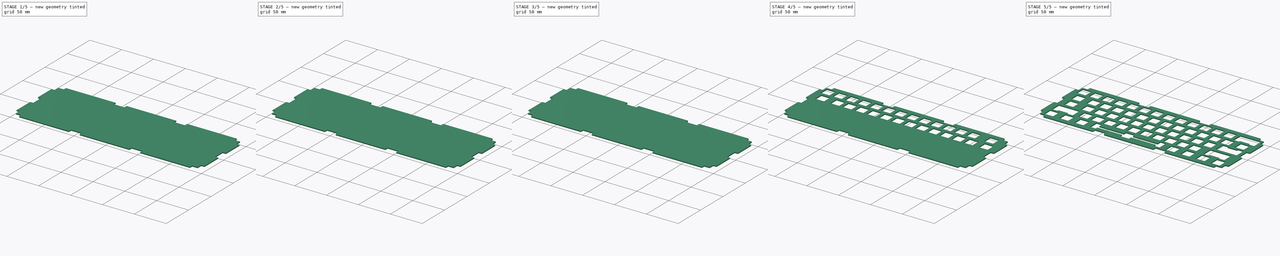
[diagram: build sequence overview — one tinted view per stage of 5, left to right]
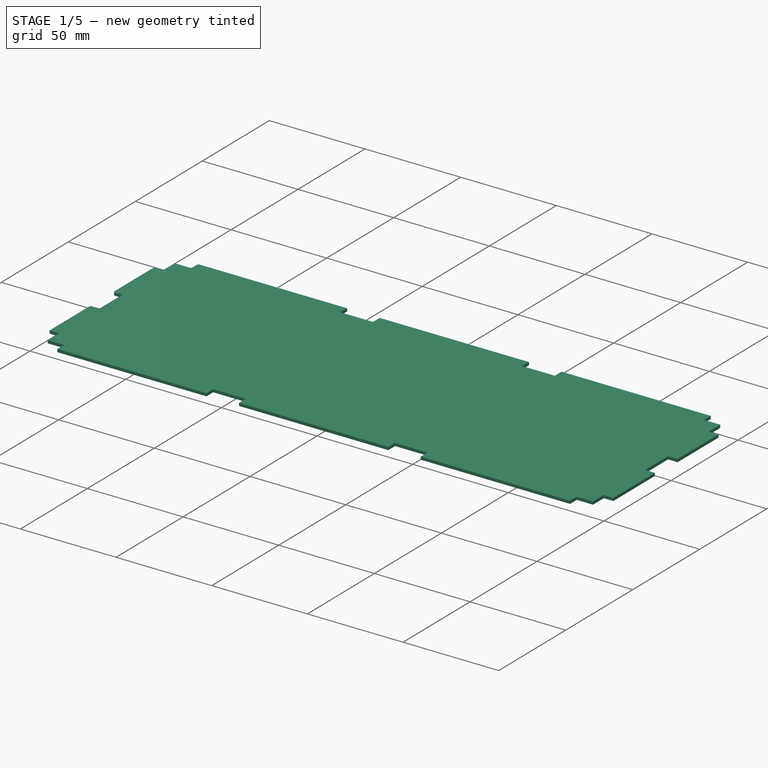
[diagram: stage 1 of 5 — iso view after this stage's code; geometry added in this stage tinted green]
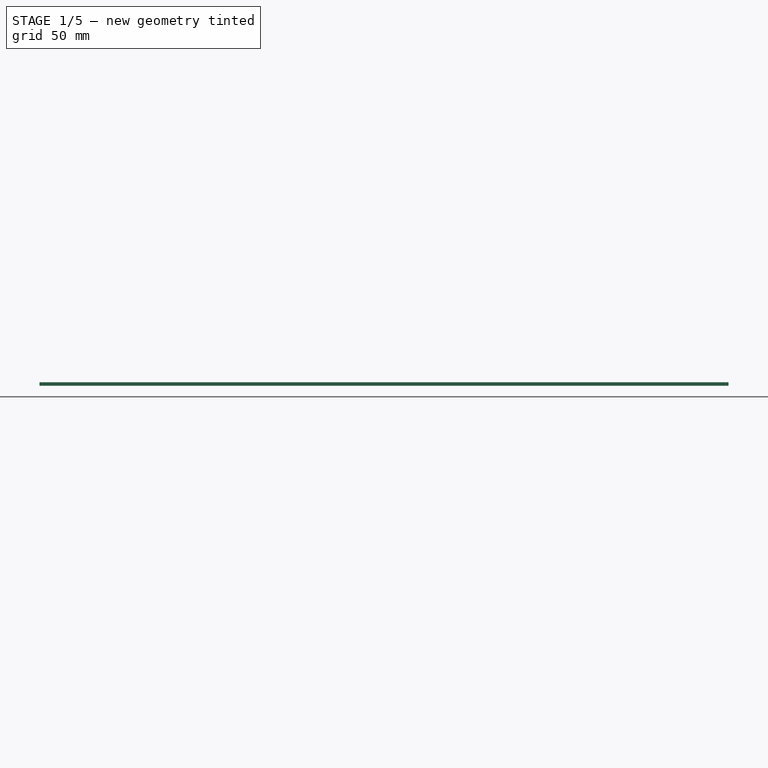
[diagram: stage 1 of 5 — front view after this stage's code; geometry added in this stage tinted green]
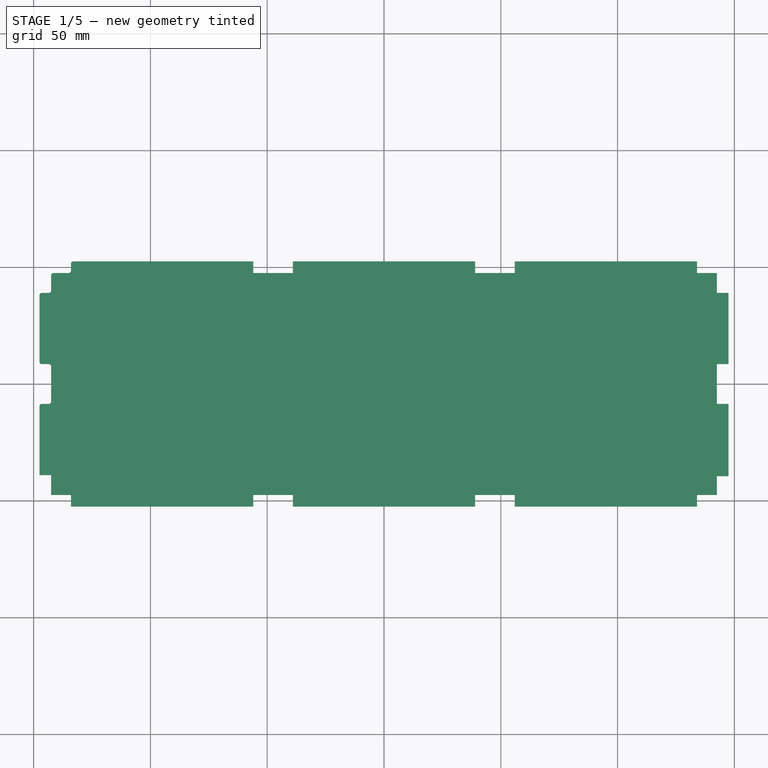
[diagram: stage 1 of 5 — top view after this stage's code; geometry added in this stage tinted green]
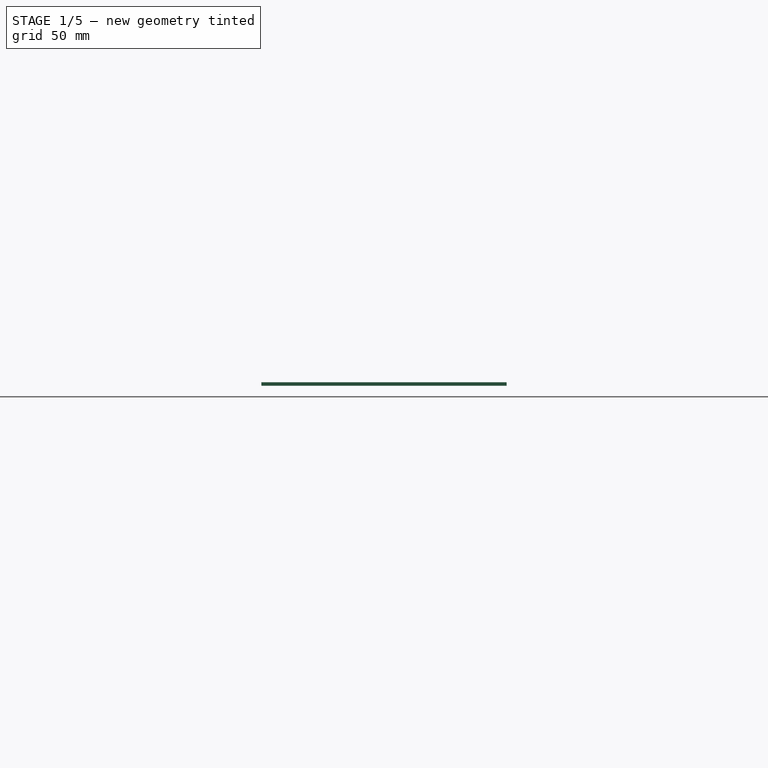
[diagram: stage 1 of 5 — right view after this stage's code; geometry added in this stage tinted green]
FCSTD DOCUMENT  (FreeCAD 0.19R)
Label: goose60_plate
License: All rights reserved
LicenseURL: http://en.wikipedia.org/wiki/All_rights_reserved
objects: PartDesign::Fillet×44, Sketcher::SketchObject×24, PartDesign::Pocket×19, PartDesign::Pad×1, PartDesign::Body×1
note: 153 computed .brp shape members not serialized (recipe doc carries the construction recipe); baked Part::Feature solids carry a one-line shape summary decoded from their .brp

FEATURE [Sketcher::SketchObject] Sketch
  FullyConstrained = true
  MapMode = 5
  Support = -> [XY_Plane]
  sketch-geometry (4):
    g0: LineSegment StartX=-147.5 StartY=52.5 StartZ=0 EndX=147.5 EndY=52.5 EndZ=0
    g1: LineSegment StartX=147.5 StartY=52.5 StartZ=0 EndX=147.5 EndY=-52.5 EndZ=0
    g2: LineSegment StartX=147.5 StartY=-52.5 StartZ=0 EndX=-147.5 EndY=-52.5 EndZ=0
    g3: LineSegment StartX=-147.5 StartY=-52.5 StartZ=0 EndX=-147.5 EndY=52.5 EndZ=0
  constraints (11):
    c: Coincident(g0,g1)
    c: Coincident(g1,g2)
    c: Coincident(g2,g3)
    c: Coincident(g3,g0)
    c: Horizontal(g0)
    c: Horizontal(g2)
    c: Vertical(g1)
    c: Vertical(g3)
    c: DistanceX(g0,g0) = 295
    c: DistanceY(g3,g3) = 105
    c: Symmetric(g0,g1,g-1)
FEATURE [PartDesign::Pad] Pad
  Direction = (1,1,1)
  Length = 1.5
  Length2 = 100
  Profile = -> Sketch
  Type = 0
FEATURE [Sketcher::SketchObject] Sketch001
  FullyConstrained = false
  MapMode = 5
  Placement = pos=(0,0,1.5) rot=(0,0,1;0rad)
  Support = -> [Pad]
  sketch-geometry (16):
    g0: LineSegment StartX=-56 StartY=52.5 StartZ=0 EndX=-39 EndY=52.5 EndZ=0
    g1: LineSegment StartX=-39 StartY=52.5 StartZ=0 EndX=-39 EndY=47.5 EndZ=0
    g2: LineSegment StartX=-39 StartY=47.5 StartZ=0 EndX=-56 EndY=47.5 EndZ=0
    g3: LineSegment StartX=-56 StartY=47.5 StartZ=0 EndX=-56 EndY=52.5 EndZ=0
    g4: LineSegment StartX=39 StartY=52.5 StartZ=0 EndX=56 EndY=52.5 EndZ=0
    g5: LineSegment StartX=56 StartY=52.5 StartZ=0 EndX=56 EndY=47.5 EndZ=0
    g6: LineSegment StartX=56 StartY=47.5 StartZ=0 EndX=39 EndY=47.5 EndZ=0
    g7: LineSegment StartX=39 StartY=47.5 StartZ=0 EndX=39 EndY=52.5 EndZ=0
    g8: LineSegment StartX=-56 StartY=-47.5 StartZ=0 EndX=-39 EndY=-47.5 EndZ=0
    g9: LineSegment StartX=-39 StartY=-47.5 StartZ=0 EndX=-39 EndY=-52.5 EndZ=0
    g10: LineSegment StartX=-39 StartY=-52.5 StartZ=0 EndX=-56 EndY=-52.5 EndZ=0
    g11: LineSegment StartX=-56 StartY=-52.5 StartZ=0 EndX=-56 EndY=-47.5 EndZ=0
    g12: LineSegment StartX=34.245 StartY=-33.9661 StartZ=0 EndX=51.245 EndY=-33.9661 EndZ=0
    g13: LineSegment StartX=51.245 StartY=-33.9661 StartZ=0 EndX=51.245 EndY=-41.3836 EndZ=0
    g14: LineSegment StartX=51.245 StartY=-41.3836 StartZ=0 EndX=34.245 EndY=-41.3836 EndZ=0
    g15: LineSegment StartX=34.245 StartY=-41.3836 StartZ=0 EndX=34.245 EndY=-33.9661 EndZ=0
  constraints (45):
    c: Coincident(g0,g1)
    c: Coincident(g1,g2)
    c: Coincident(g2,g3)
    c: Coincident(g3,g0)
    c: Horizontal(g0)
    c: Horizontal(g2)
    c: Vertical(g1)
    c: Vertical(g3)
    c: DistanceY(g3,g3) = 5
    c: DistanceX(g0,g0) = 17
    c: DistanceX(g0,g-1) = 39
    c: DistanceY(g-1,g1) = 47.5
    c: Coincident(g4,g5)
    c: Coincident(g5,g6)
    c: Coincident(g6,g7)
    c: Coincident(g7,g4)
    c: Horizontal(g4)
    c: Horizontal(g6)
    c: Vertical(g5)
    c: Vertical(g7)
    c: DistanceX(g4,g4) = 17
    c: DistanceY(g5,g5) = 5
    c: DistanceX(g-1,g4) = 39
    c: DistanceY(g-1,g6) = 47.5
    c: Coincident(g8,g9)
    c: Coincident(g9,g10)
    c: Coincident(g10,g11)
    c: Coincident(g11,g8)
    c: Horizontal(g8)
    c: Horizontal(g10)
    c: Vertical(g9)
    c: Vertical(g11)
    c: DistanceX(g10,g10) = 17
    c: DistanceY(g11,g11) = 5
    c: DistanceX(g9,g-1) = 39
    c: DistanceY(g8,g-1) = 47.5
    c: Coincident(g12,g13)
    c: Coincident(g13,g14)
    c: Coincident(g14,g15)
    c: Coincident(g15,g12)
    c: Horizontal(g12)
    c: Horizontal(g14)
    c: Vertical(g13)
    c: Vertical(g15)
    c: DistanceX(g14,g14) = 17
FEATURE [Sketcher::SketchObject] Sketch002
  FullyConstrained = true
  MapMode = 5
  Placement = pos=(0,0,1.5) rot=(0,0,1;0rad)
  Support = -> [Pad]
  sketch-geometry (24):
    g0: LineSegment StartX=-56 StartY=52.5 StartZ=0 EndX=-39 EndY=52.5 EndZ=0
    g1: LineSegment StartX=-39 StartY=52.5 StartZ=0 EndX=-39 EndY=47.5 EndZ=0
    g2: LineSegment StartX=-39 StartY=47.5 StartZ=0 EndX=-56 EndY=47.5 EndZ=0
    g3: LineSegment StartX=-56 StartY=47.5 StartZ=0 EndX=-56 EndY=52.5 EndZ=0
    g4: LineSegment StartX=39 StartY=52.5 StartZ=0 EndX=56 EndY=52.5 EndZ=0
    g5: LineSegment StartX=56 StartY=52.5 StartZ=0 EndX=56 EndY=47.5 EndZ=0
    g6: LineSegment StartX=56 StartY=47.5 StartZ=0 EndX=39 EndY=47.5 EndZ=0
    g7: LineSegment StartX=39 StartY=47.5 StartZ=0 EndX=39 EndY=52.5 EndZ=0
    g8: LineSegment StartX=39 StartY=-47.5 StartZ=0 EndX=56 EndY=-47.5 EndZ=0
    g9: LineSegment StartX=56 StartY=-47.5 StartZ=0 EndX=56 EndY=-52.5 EndZ=0
    g10: LineSegment StartX=56 StartY=-52.5 StartZ=0 EndX=39 EndY=-52.5 EndZ=0
    g11: LineSegment StartX=39 StartY=-52.5 StartZ=0 EndX=39 EndY=-47.5 EndZ=0
    g12: LineSegment StartX=-56 StartY=-47.5 StartZ=0 EndX=-39 EndY=-47.5 EndZ=0
    g13: LineSegment StartX=-39 StartY=-47.5 StartZ=0 EndX=-39 EndY=-52.5 EndZ=0
    g14: LineSegment StartX=-39 StartY=-52.5 StartZ=0 EndX=-56 EndY=-52.5 EndZ=0
    g15: LineSegment StartX=-56 StartY=-52.5 StartZ=0 EndX=-56 EndY=-47.5 EndZ=0
    g16: LineSegment StartX=-147.5 StartY=8.5 StartZ=0 EndX=-142.5 EndY=8.5 EndZ=0
    g17: LineSegment StartX=-142.5 StartY=8.5 StartZ=0 EndX=-142.5 EndY=-8.5 EndZ=0
    g18: LineSegment StartX=-142.5 StartY=-8.5 StartZ=0 EndX=-147.5 EndY=-8.5 EndZ=0
    g19: LineSegment StartX=-147.5 StartY=-8.5 StartZ=0 EndX=-147.5 EndY=8.5 EndZ=0
    g20: LineSegment StartX=142.5 StartY=8.5 StartZ=0 EndX=147.5 EndY=8.5 EndZ=0
    g21: LineSegment StartX=147.5 StartY=8.5 StartZ=0 EndX=147.5 EndY=-8.5 EndZ=0
    g22: LineSegment StartX=147.5 StartY=-8.5 StartZ=0 EndX=142.5 EndY=-8.5 EndZ=0
    g23: LineSegment StartX=142.5 StartY=-8.5 StartZ=0 EndX=142.5 EndY=8.5 EndZ=0
  constraints (72):
    c: Coincident(g0,g1)
    c: Coincident(g1,g2)
    c: Coincident(g2,g3)
    c: Coincident(g3,g0)
    c: Horizontal(g0)
    c: Horizontal(g2)
    c: Vertical(g1)
    c: Vertical(g3)
    c: DistanceX(g0,g0) = 17
    c: DistanceY(g3,g3) = 5
    c: DistanceX(g0,g-1) = 39
    c: DistanceY(g-1,g1) = 47.5
    c: Coincident(g4,g5)
    c: Coincident(g5,g6)
    c: Coincident(g6,g7)
    c: Coincident(g7,g4)
    c: Horizontal(g4)
    c: Horizontal(g6)
    c: Vertical(g5)
    c: Vertical(g7)
    c: DistanceX(g4,g4) = 17
    c: Coincident(g8,g9)
    c: Coincident(g9,g10)
    c: Coincident(g10,g11)
    c: Coincident(g11,g8)
    c: Horizontal(g8)
    c: Horizontal(g10)
    c: Vertical(g9)
    c: Vertical(g11)
    c: Coincident(g12,g13)
    c: Coincident(g13,g14)
    c: Coincident(g14,g15)
    c: Coincident(g15,g12)
    c: Horizontal(g12)
    c: Horizontal(g14)
    c: Vertical(g13)
    c: Vertical(g15)
    c: DistanceX(g10,g10) = 17
    c: DistanceX(g14,g14) = 17
    c: DistanceY(g5,g5) = 5
    c: DistanceY(g9,g9) = 5
    c: DistanceY(g13,g13) = 5
    c: DistanceY(g-1,g6) = 47.5
    c: DistanceY(g8,g-1) = 47.5
    c: DistanceY(g12,g-1) = 47.5
    c: DistanceX(g-1,g4) = 39
    c: DistanceX(g-1,g8) = 39
    c: DistanceX(g12,g-1) = 39
    c: Coincident(g16,g17)
    c: Coincident(g17,g18)
    c: Coincident(g18,g19)
    c: Coincident(g19,g16)
    c: Horizontal(g16)
    c: Horizontal(g18)
    c: Vertical(g17)
    c: Vertical(g19)
    c: DistanceX(g16,g16) = 5
    c: DistanceY(g19,g19) = 17
    c: DistanceY(g-1,g16) = 8.5
    c: DistanceX(g17,g-1) = 142.5
    c: Coincident(g20,g21)
    c: Coincident(g21,g22)
    c: Coincident(g22,g23)
    c: Coincident(g23,g20)
    c: Horizontal(g20)
    c: Horizontal(g22)
    c: Vertical(g21)
    c: Vertical(g23)
    c: DistanceY(g21,g21) = 17
    c: DistanceX(g20,g20) = 5
    c: DistanceX(g-1,g22) = 142.5
    c: DistanceY(g-1,g20) = 8.5
FEATURE [PartDesign::Pocket] Pocket
  BaseFeature = -> Pad
  Length = 1.5
  Length2 = 100
  Profile = -> Sketch002
  Type = 0
FEATURE [Sketcher::SketchObject] Sketch003
  FullyConstrained = true
  MapMode = 5
  Placement = pos=(0,0,1.5) rot=(0,0,1;0rad)
  Support = -> [Pocket]
  sketch-geometry (16):
    g0: LineSegment StartX=-134 StartY=52.5 StartZ=0 EndX=-147.5 EndY=52.5 EndZ=0
    g1: LineSegment StartX=-147.5 StartY=52.5 StartZ=0 EndX=-147.5 EndY=47.5 EndZ=0
    g2: LineSegment StartX=-147.5 StartY=47.5 StartZ=0 EndX=-134 EndY=47.5 EndZ=0
    g3: LineSegment StartX=-134 StartY=47.5 StartZ=0 EndX=-134 EndY=52.5 EndZ=0
    g4: LineSegment StartX=134 StartY=52.5 StartZ=0 EndX=147.5 EndY=52.5 EndZ=0
    g5: LineSegment StartX=147.5 StartY=52.5 StartZ=0 EndX=147.5 EndY=47.5 EndZ=0
    g6: LineSegment StartX=147.5 StartY=47.5 StartZ=0 EndX=134 EndY=47.5 EndZ=0
    g7: LineSegment StartX=134 StartY=47.5 StartZ=0 EndX=134 EndY=52.5 EndZ=0
    g8: LineSegment StartX=-147.5 StartY=-47.5 StartZ=0 EndX=-134 EndY=-47.5 EndZ=0
    g9: LineSegment StartX=-134 StartY=-47.5 StartZ=0 EndX=-134 EndY=-52.5 EndZ=0
    g10: LineSegment StartX=-134 StartY=-52.5 StartZ=0 EndX=-147.5 EndY=-52.5 EndZ=0
    g11: LineSegment StartX=-147.5 StartY=-52.5 StartZ=0 EndX=-147.5 EndY=-47.5 EndZ=0
    g12: LineSegment StartX=134 StartY=-47.5 StartZ=0 EndX=147.5 EndY=-47.5 EndZ=0
    g13: LineSegment StartX=147.5 StartY=-47.5 StartZ=0 EndX=147.5 EndY=-52.5 EndZ=0
    g14: LineSegment StartX=147.5 StartY=-52.5 StartZ=0 EndX=134 EndY=-52.5 EndZ=0
    g15: LineSegment StartX=134 StartY=-52.5 StartZ=0 EndX=134 EndY=-47.5 EndZ=0
  constraints (48):
    c: Coincident(g0,g1)
    c: Coincident(g1,g2)
    c: Coincident(g2,g3)
    c: Coincident(g3,g0)
    c: Horizontal(g0)
    c: Horizontal(g2)
    c: Vertical(g1)
    c: Vertical(g3)
    c: DistanceY(g3,g3) = 5
    c: DistanceX(g0,g0) = 13.5
    c: DistanceX(g0,g-1) = 134
    c: DistanceY(g-1,g2) = 47.5
    c: Coincident(g4,g5)
    c: Coincident(g5,g6)
    c: Coincident(g6,g7)
    c: Coincident(g7,g4)
    c: Horizontal(g4)
    c: Horizontal(g6)
    c: Vertical(g5)
    c: Vertical(g7)
    c: DistanceX(g4,g4) = 13.5
    c: DistanceY(g5,g5) = 5
    c: DistanceX(g-1,g4) = 134
    c: DistanceY(g-1,g6) = 47.5
    c: Coincident(g8,g9)
    c: Coincident(g9,g10)
    c: Coincident(g10,g11)
    c: Coincident(g11,g8)
    c: Horizontal(g8)
    c: Horizontal(g10)
    c: Vertical(g9)
    c: Vertical(g11)
    c: DistanceX(g10,g10) = 13.5
    c: DistanceY(g11,g11) = 5
    c: DistanceX(g9,g-1) = 134
    c: DistanceY(g8,g-1) = 47.5
    c: Coincident(g12,g13)
    c: Coincident(g13,g14)
    c: Coincident(g14,g15)
    c: Coincident(g15,g12)
    c: Horizontal(g12)
    c: Horizontal(g14)
    c: Vertical(g13)
    c: Vertical(g15)
    c: DistanceX(g14,g14) = 13.5
    c: DistanceY(g13,g13) = 5
    c: DistanceY(g12,g-1) = 47.5
    c: DistanceX(g-1,g14) = 134
FEATURE [PartDesign::Pocket] Pocket001
  BaseFeature = -> Pocket
  Length = 1.5
  Length2 = 100
  Profile = -> Sketch003
  Type = 0
FEATURE [Sketcher::SketchObject] Sketch004
  FullyConstrained = true
  MapMode = 5
  Placement = pos=(0,0,1.5) rot=(0,0,1;0rad)
  Support = -> [Pocket001]
  sketch-geometry (16):
    g0: LineSegment StartX=-147.5 StartY=52.5 StartZ=0 EndX=-142.5 EndY=52.5 EndZ=0
    g1: LineSegment StartX=-142.5 StartY=52.5 StartZ=0 EndX=-142.5 EndY=39 EndZ=0
    g2: LineSegment StartX=-142.5 StartY=39 StartZ=0 EndX=-147.5 EndY=39 EndZ=0
    g3: LineSegment StartX=-147.5 StartY=39 StartZ=0 EndX=-147.5 EndY=52.5 EndZ=0
    g4: LineSegment StartX=-147.5 StartY=-39 StartZ=0 EndX=-142.5 EndY=-39 EndZ=0
    g5: LineSegment StartX=-142.5 StartY=-39 StartZ=0 EndX=-142.5 EndY=-52.5 EndZ=0
    g6: LineSegment StartX=-142.5 StartY=-52.5 StartZ=0 EndX=-147.5 EndY=-52.5 EndZ=0
    g7: LineSegment StartX=-147.5 StartY=-52.5 StartZ=0 EndX=-147.5 EndY=-39 EndZ=0
    g8: LineSegment StartX=142.5 StartY=52.5 StartZ=0 EndX=147.5 EndY=52.5 EndZ=0
    g9: LineSegment StartX=147.5 StartY=52.5 StartZ=0 EndX=147.5 EndY=39 EndZ=0
    g10: LineSegment StartX=147.5 StartY=39 StartZ=0 EndX=142.5 EndY=39 EndZ=0
    g11: LineSegment StartX=142.5 StartY=39 StartZ=0 EndX=142.5 EndY=52.5 EndZ=0
    g12: LineSegment StartX=142.5 StartY=-39.5 StartZ=0 EndX=147.5 EndY=-39.5 EndZ=0
    g13: LineSegment StartX=147.5 StartY=-39.5 StartZ=0 EndX=147.5 EndY=-53 EndZ=0
    g14: LineSegment StartX=147.5 StartY=-53 StartZ=0 EndX=142.5 EndY=-53 EndZ=0
    g15: LineSegment StartX=142.5 StartY=-53 StartZ=0 EndX=142.5 EndY=-39.5 EndZ=0
  constraints (48):
    c: Coincident(g0,g1)
    c: Coincident(g1,g2)
    c: Coincident(g2,g3)
    c: Coincident(g3,g0)
    c: Horizontal(g0)
    c: Horizontal(g2)
    c: Vertical(g1)
    c: Vertical(g3)
    c: DistanceX(g0,g0) = 5
    c: DistanceY(g3,g3) = 13.5
    c: DistanceX(g0,g-1) = 142.5
    c: DistanceY(g-1,g1) = 39
    c: Coincident(g4,g5)
    c: Coincident(g5,g6)
    c: Coincident(g6,g7)
    c: Coincident(g7,g4)
    c: Horizontal(g4)
    c: Horizontal(g6)
    c: Vertical(g5)
    c: Vertical(g7)
    c: DistanceX(g4,g4) = 5
    c: DistanceY(g7,g7) = 13.5
    c: DistanceX(g4,g-1) = 142.5
    c: DistanceY(g4,g-1) = 39
    c: Coincident(g8,g9)
    c: Coincident(g9,g10)
    c: Coincident(g10,g11)
    c: Coincident(g11,g8)
    c: Horizontal(g8)
    c: Horizontal(g10)
    c: Vertical(g9)
    c: Vertical(g11)
    c: DistanceX(g8,g8) = 5
    c: DistanceY(g9,g9) = 13.5
    c: DistanceX(g-1,g8) = 142.5
    c: DistanceY(g-1,g10) = 39
    c: Coincident(g12,g13)
    c: Coincident(g13,g14)
    c: Coincident(g14,g15)
    c: Coincident(g15,g12)
    c: Horizontal(g12)
    c: Horizontal(g14)
    c: Vertical(g13)
    c: Vertical(g15)
    c: DistanceX(g14,g14) = 5
    c: DistanceY(g13,g13) = 13.5
    c: DistanceY(g12,g-1) = 39.5
    c: DistanceX(g-1,g12) = 142.5
FEATURE [PartDesign::Pocket] Pocket002
  BaseFeature = -> Pocket001
  Length = 1.5
  Length2 = 100
  Profile = -> Sketch004
  Type = 0
FEATURE [PartDesign::Fillet] Fillet
  Base = -> Pocket002 [Edge95]
  BaseFeature = -> Pocket002
  Radius = 1
  SupportTransform = false
FEATURE [PartDesign::Fillet] Fillet001
  Base = -> Fillet [Edge54]
  BaseFeature = -> Fillet
  Radius = 1
  SupportTransform = false
FEATURE [PartDesign::Fillet] Fillet002
  Base = -> Fillet001 [Edge60]
  BaseFeature = -> Fillet001
  Radius = 1
  SupportTransform = false
FEATURE [PartDesign::Fillet] Fillet003
  Base = -> Fillet002 [Edge50]
  BaseFeature = -> Fillet002
  Radius = 1
  SupportTransform = false
FEATURE [PartDesign::Fillet] Fillet004
  Base = -> Fillet003 [Edge58]
  BaseFeature = -> Fillet003
  Radius = 1
  SupportTransform = false
FEATURE [PartDesign::Fillet] Fillet005
  Base = -> Fillet004 [Edge58]
  BaseFeature = -> Fillet004
  Radius = 1
  SupportTransform = false
FEATURE [PartDesign::Fillet] Fillet006
  Base = -> Fillet005 [Edge59]
  BaseFeature = -> Fillet005
  Radius = 1
  SupportTransform = false
FEATURE [PartDesign::Fillet] Fillet007
  Base = -> Fillet006 [Edge60]
  BaseFeature = -> Fillet006
  Radius = 1
  SupportTransform = false
FEATURE [PartDesign::Fillet] Fillet008
  Base = -> Fillet007 [Edge61]
  BaseFeature = -> Fillet007
  Radius = 1
  SupportTransform = false
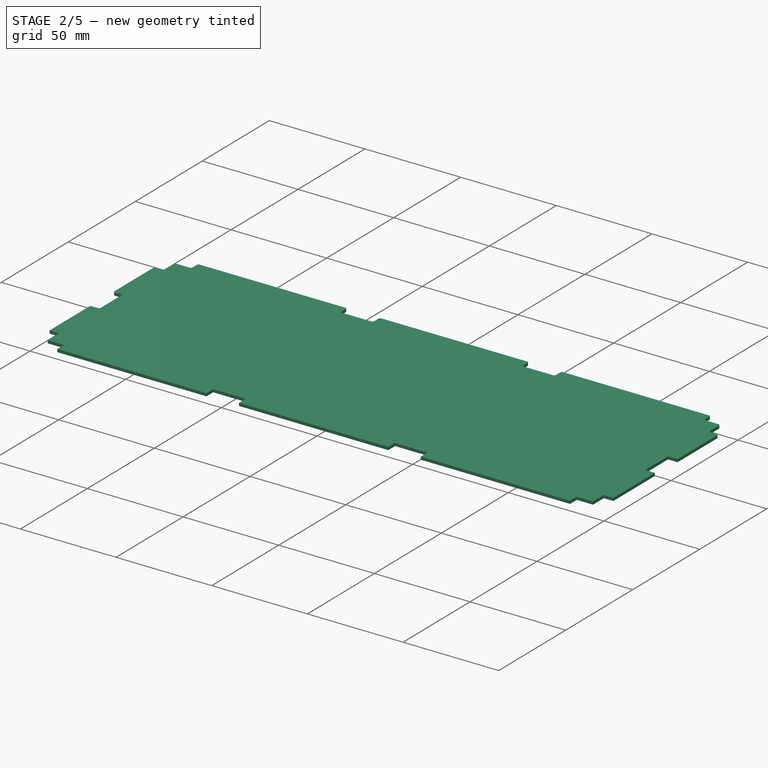
[diagram: stage 2 of 5 — iso view after this stage's code; geometry added in this stage tinted green]
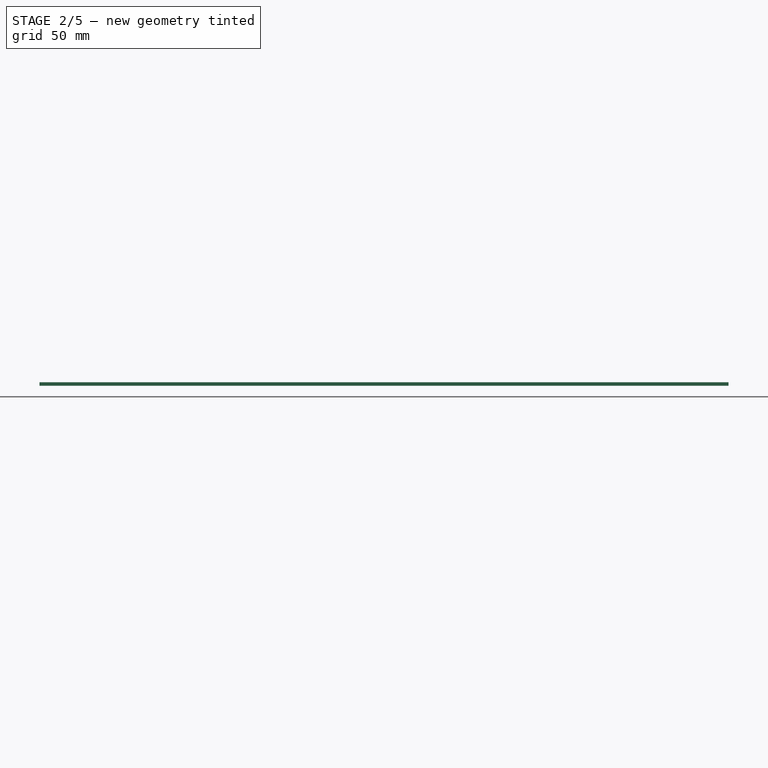
[diagram: stage 2 of 5 — front view after this stage's code; geometry added in this stage tinted green]
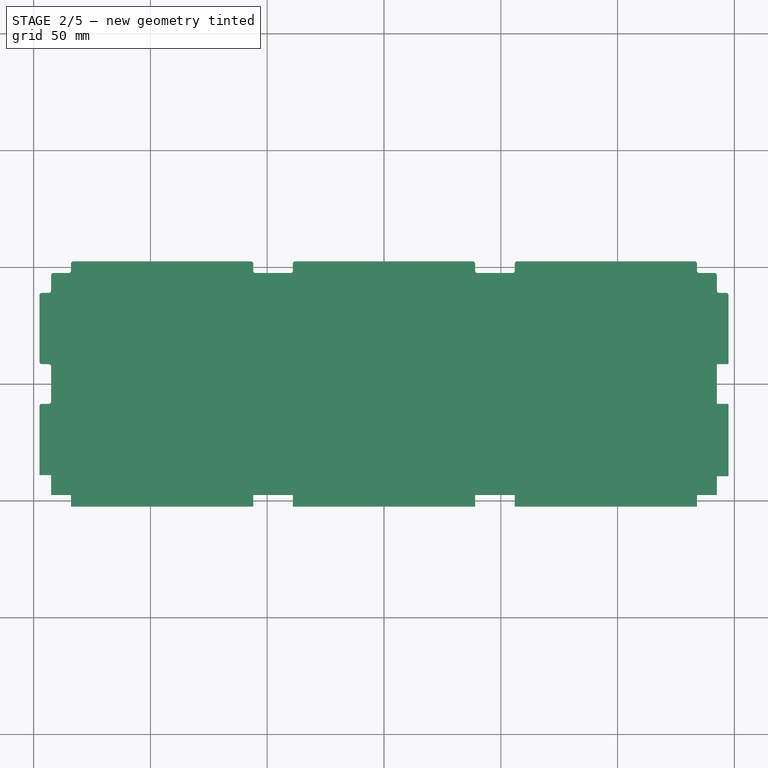
[diagram: stage 2 of 5 — top view after this stage's code; geometry added in this stage tinted green]
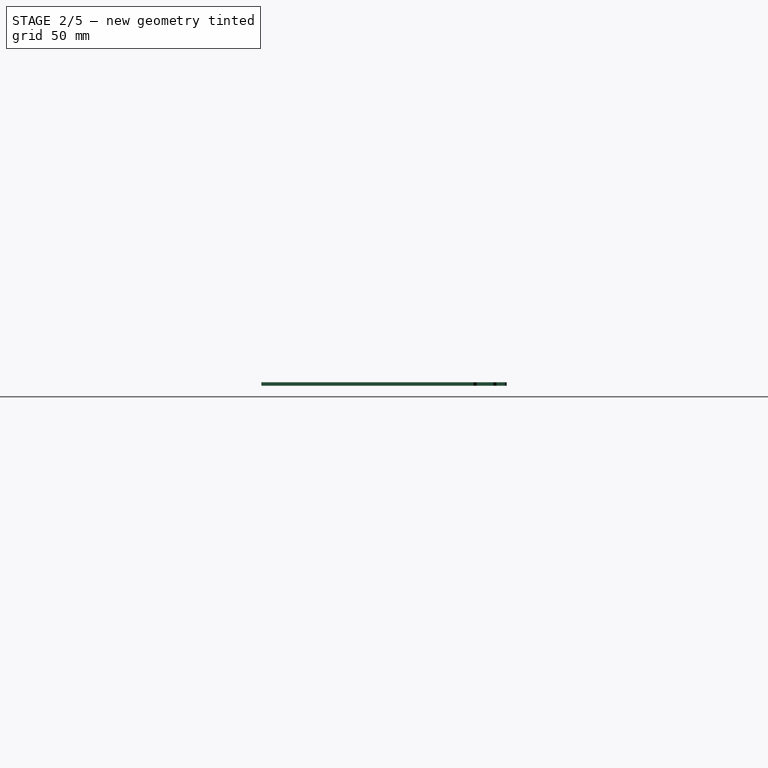
[diagram: stage 2 of 5 — right view after this stage's code; geometry added in this stage tinted green]
FEATURE [PartDesign::Fillet] Fillet009
  Base = -> Fillet008 [Edge65]
  BaseFeature = -> Fillet008
  Radius = 1
  SupportTransform = false
FEATURE [PartDesign::Fillet] Fillet010
  Base = -> Fillet009 [Edge57]
  BaseFeature = -> Fillet009
  Radius = 1
  SupportTransform = false
FEATURE [PartDesign::Fillet] Fillet011
  Base = -> Fillet010 [Edge69]
  BaseFeature = -> Fillet010
  Radius = 1
  SupportTransform = false
FEATURE [PartDesign::Fillet] Fillet012
  Base = -> Fillet011 [Edge59]
  BaseFeature = -> Fillet011
  Radius = 1
  SupportTransform = false
FEATURE [PartDesign::Fillet] Fillet013
  Base = -> Fillet012 [Edge75]
  BaseFeature = -> Fillet012
  Radius = 1
  SupportTransform = false
FEATURE [PartDesign::Fillet] Fillet014
  Base = -> Fillet013 [Edge67]
  BaseFeature = -> Fillet013
  Radius = 1
  SupportTransform = false
FEATURE [PartDesign::Fillet] Fillet015
  Base = -> Fillet014 [Edge73]
  BaseFeature = -> Fillet014
  Radius = 1
  SupportTransform = false
FEATURE [PartDesign::Fillet] Fillet016
  Base = -> Fillet015 [Edge63]
  BaseFeature = -> Fillet015
  Radius = 1
  SupportTransform = false
FEATURE [PartDesign::Fillet] Fillet017
  Base = -> Fillet016 [Edge85]
  BaseFeature = -> Fillet016
  Radius = 1
  SupportTransform = false
FEATURE [PartDesign::Fillet] Fillet018
  Base = -> Fillet017 [Edge75]
  BaseFeature = -> Fillet017
  Radius = 1
  SupportTransform = false
FEATURE [PartDesign::Fillet] Fillet019
  Base = -> Fillet018 [Edge66]
  BaseFeature = -> Fillet018
  Radius = 1
  SupportTransform = false
FEATURE [PartDesign::Fillet] Fillet020
  Base = -> Fillet019 [Edge78]
  BaseFeature = -> Fillet019
  Radius = 1
  SupportTransform = false
FEATURE [PartDesign::Fillet] Fillet021
  Base = -> Fillet020 [Edge68]
  BaseFeature = -> Fillet020
  Radius = 1
  SupportTransform = false
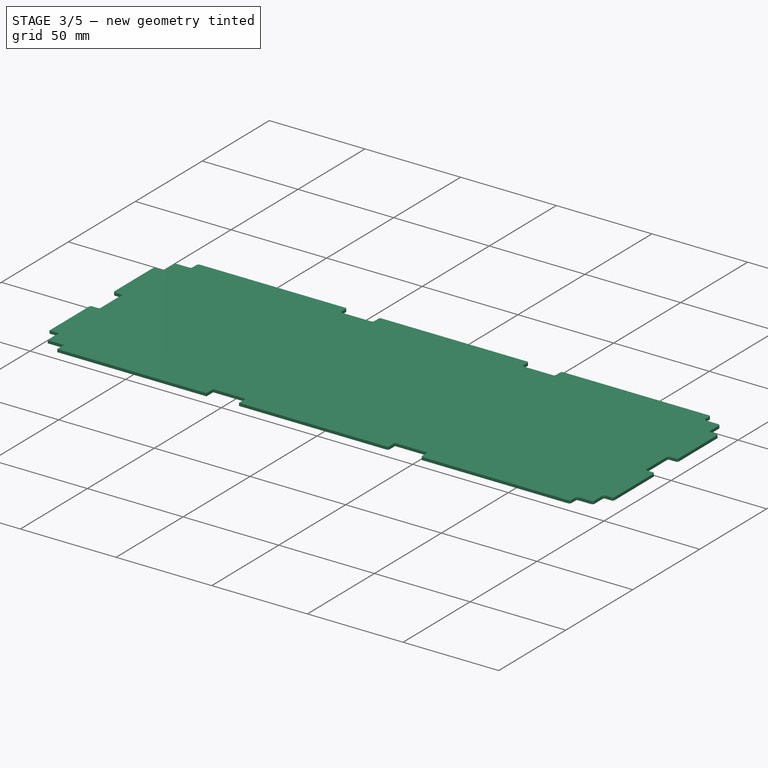
[diagram: stage 3 of 5 — iso view after this stage's code; geometry added in this stage tinted green]
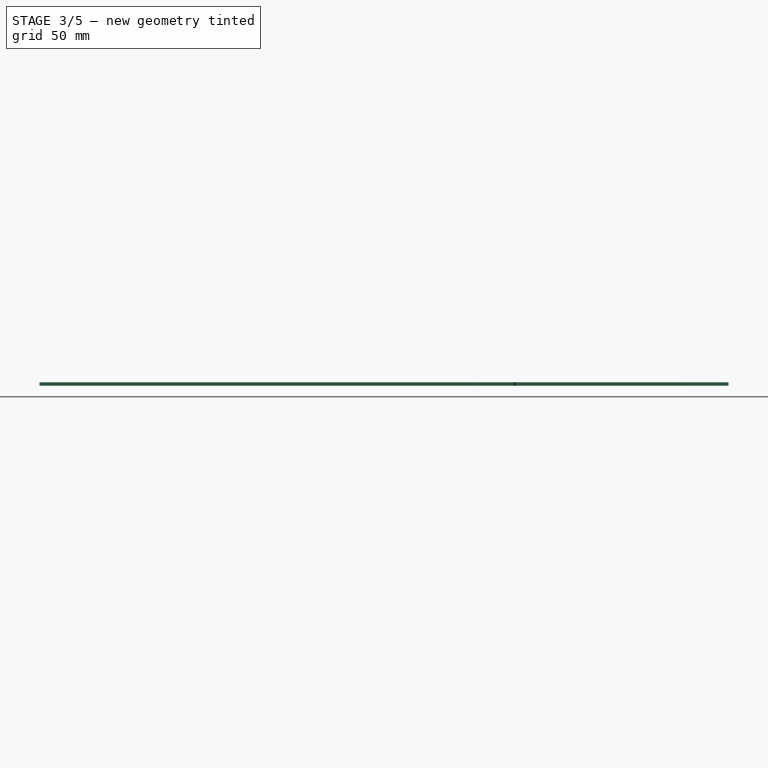
[diagram: stage 3 of 5 — front view after this stage's code; geometry added in this stage tinted green]
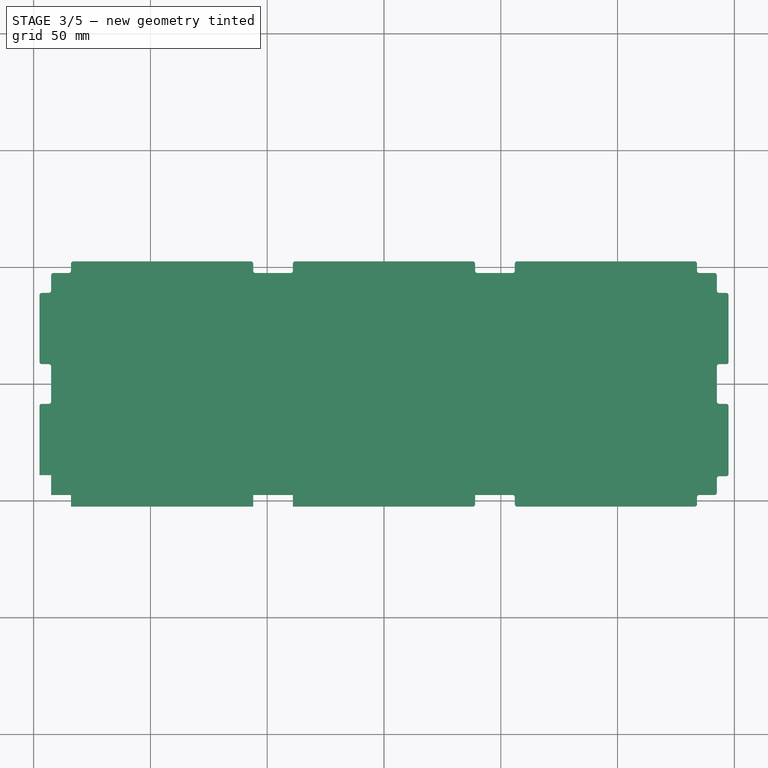
[diagram: stage 3 of 5 — top view after this stage's code; geometry added in this stage tinted green]
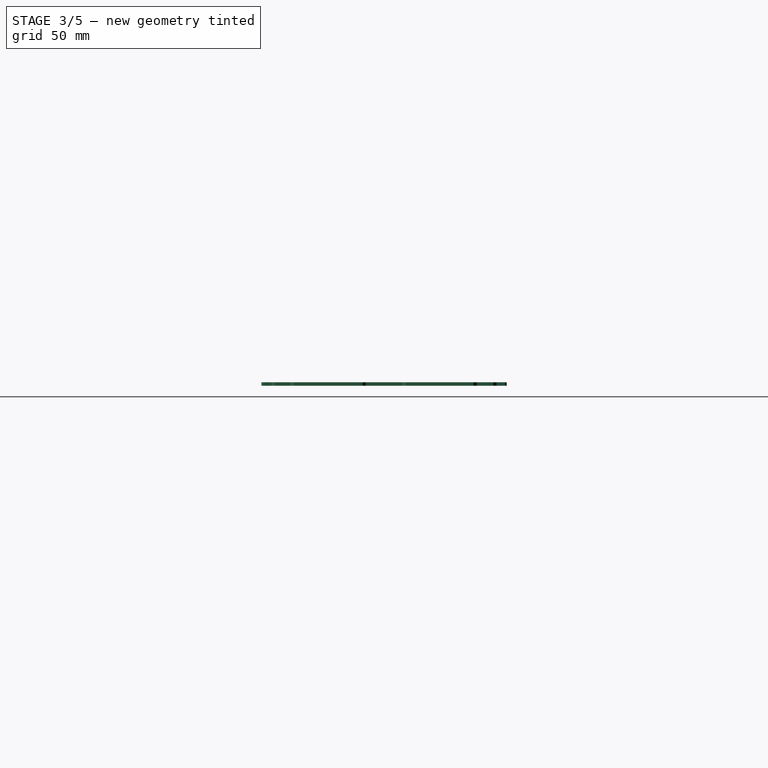
[diagram: stage 3 of 5 — right view after this stage's code; geometry added in this stage tinted green]
FEATURE [PartDesign::Fillet] Fillet022
  Base = -> Fillet021 [Edge88]
  BaseFeature = -> Fillet021
  Radius = 1
  SupportTransform = false
FEATURE [PartDesign::Fillet] Fillet023
  Base = -> Fillet022 [Edge70]
  BaseFeature = -> Fillet022
  Radius = 1
  SupportTransform = false
FEATURE [PartDesign::Fillet] Fillet024
  Base = -> Fillet023 [Edge80]
  BaseFeature = -> Fillet023
  Radius = 1
  SupportTransform = false
FEATURE [PartDesign::Fillet] Fillet025
  Base = -> Fillet024 [Edge72]
  BaseFeature = -> Fillet024
  Radius = 1
  SupportTransform = false
FEATURE [PartDesign::Fillet] Fillet026
  Base = -> Fillet025 [Edge94]
  BaseFeature = -> Fillet025
  Radius = 1
  SupportTransform = false
FEATURE [PartDesign::Fillet] Fillet027
  Base = -> Fillet026 [Edge80]
  BaseFeature = -> Fillet026
  Radius = 1
  SupportTransform = false
FEATURE [PartDesign::Fillet] Fillet028
  Base = -> Fillet027 [Edge81]
  BaseFeature = -> Fillet027
  Radius = 1
  SupportTransform = false
FEATURE [PartDesign::Fillet] Fillet029
  Base = -> Fillet028 [Edge82]
  BaseFeature = -> Fillet028
  Radius = 1
  SupportTransform = false
FEATURE [PartDesign::Fillet] Fillet030
  Base = -> Fillet029 [Edge83]
  BaseFeature = -> Fillet029
  Radius = 1
  SupportTransform = false
FEATURE [PartDesign::Fillet] Fillet031
  Base = -> Fillet030 [Edge83]
  BaseFeature = -> Fillet030
  Radius = 1
  SupportTransform = false
FEATURE [PartDesign::Fillet] Fillet032
  Base = -> Fillet031 [Edge85]
  BaseFeature = -> Fillet031
  Radius = 1
  SupportTransform = false
FEATURE [PartDesign::Fillet] Fillet033
  Base = -> Fillet032 [Edge89]
  BaseFeature = -> Fillet032
  Radius = 1
  SupportTransform = false
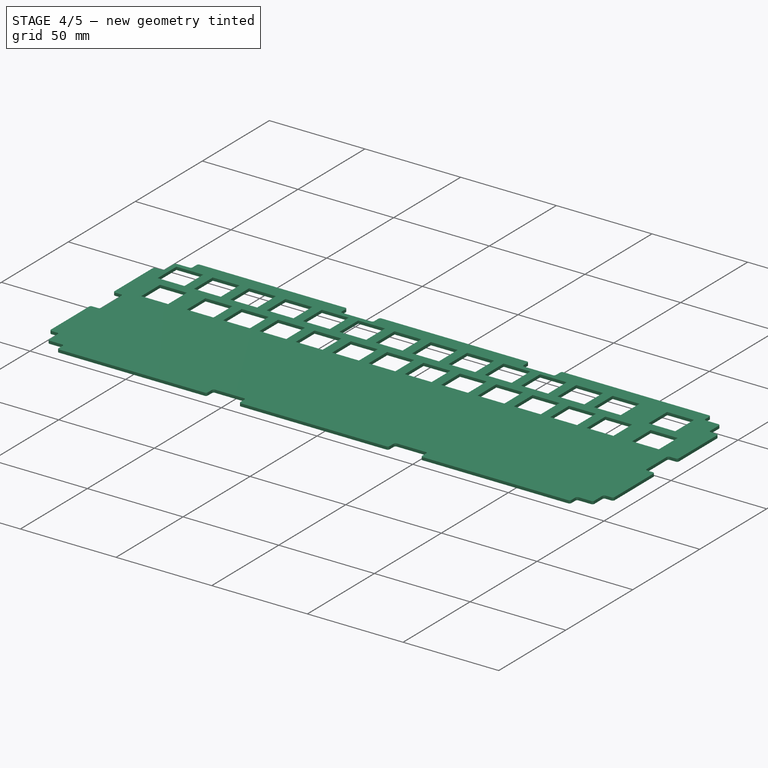
[diagram: stage 4 of 5 — iso view after this stage's code; geometry added in this stage tinted green]
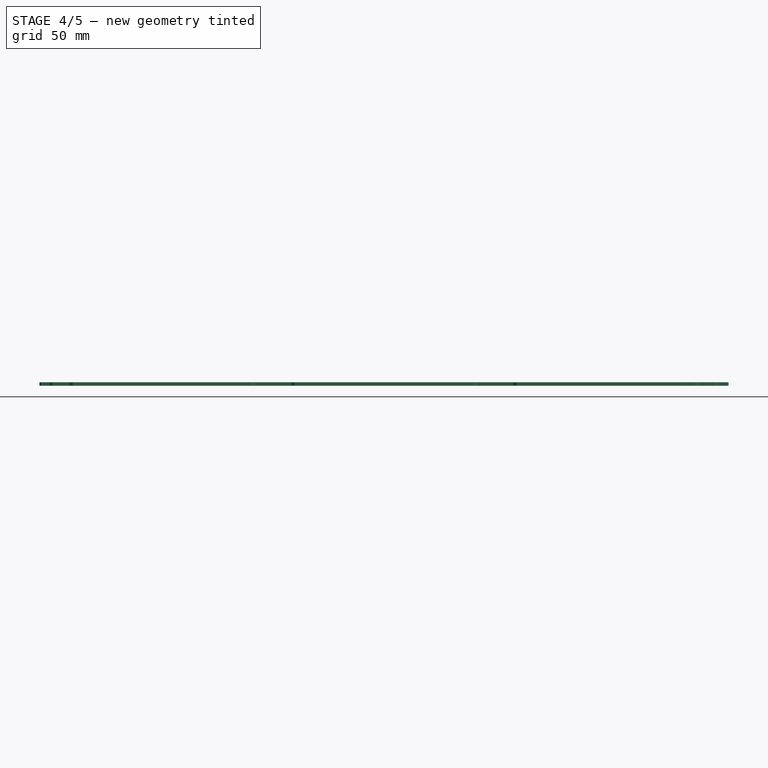
[diagram: stage 4 of 5 — front view after this stage's code; geometry added in this stage tinted green]
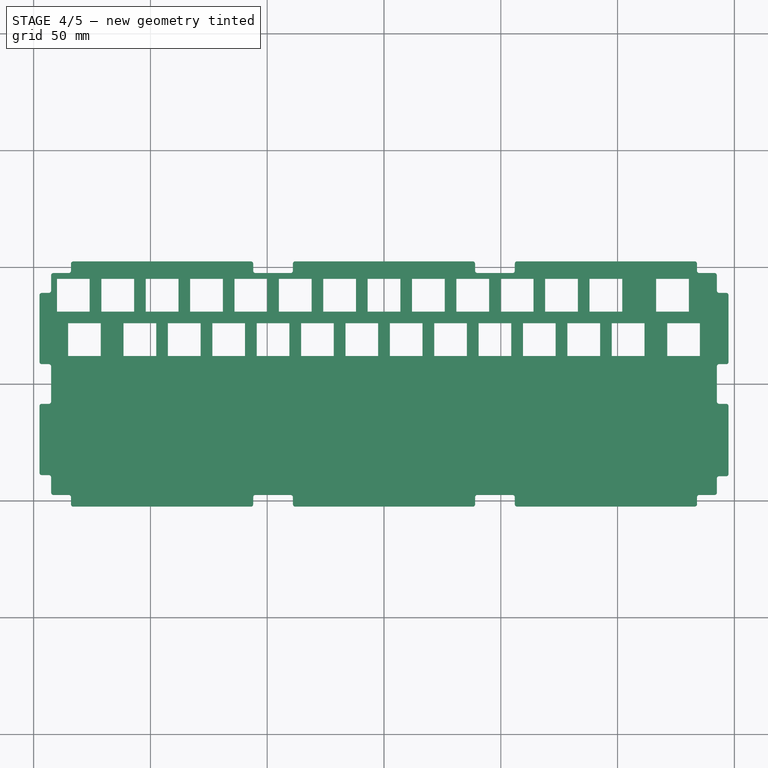
[diagram: stage 4 of 5 — top view after this stage's code; geometry added in this stage tinted green]
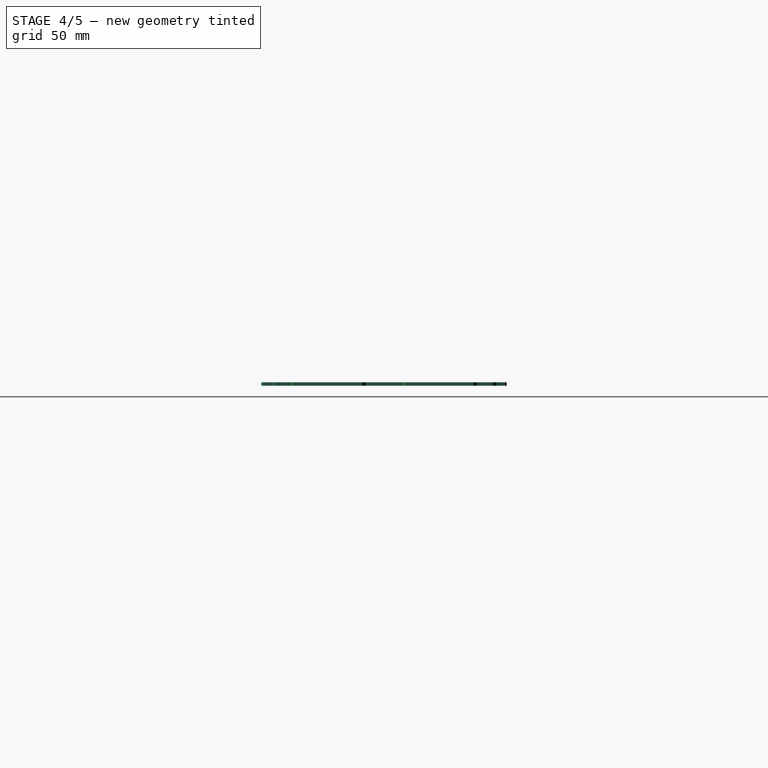
[diagram: stage 4 of 5 — right view after this stage's code; geometry added in this stage tinted green]
FEATURE [PartDesign::Fillet] Fillet034
  Base = -> Fillet033 [Edge81]
  BaseFeature = -> Fillet033
  Radius = 1
  SupportTransform = false
FEATURE [PartDesign::Fillet] Fillet035
  Base = -> Fillet034 [Edge97]
  BaseFeature = -> Fillet034
  Radius = 1
  SupportTransform = false
FEATURE [PartDesign::Fillet] Fillet036
  Base = -> Fillet035 [Edge89]
  BaseFeature = -> Fillet035
  Radius = 1
  SupportTransform = false
FEATURE [PartDesign::Fillet] Fillet037
  Base = -> Fillet036 [Edge95]
  BaseFeature = -> Fillet036
  Radius = 1
  SupportTransform = false
FEATURE [PartDesign::Fillet] Fillet038
  Base = -> Fillet037 [Edge85]
  BaseFeature = -> Fillet037
  Radius = 1
  SupportTransform = false
FEATURE [PartDesign::Fillet] Fillet039
  Base = -> Fillet038 [Edge123]
  BaseFeature = -> Fillet038
  Radius = 1
  SupportTransform = false
FEATURE [PartDesign::Fillet] Fillet040
  Base = -> Fillet039 [Edge87]
  BaseFeature = -> Fillet039
  Radius = 1
  SupportTransform = false
FEATURE [PartDesign::Fillet] Fillet041
  Base = -> Fillet040 [Edge94]
  BaseFeature = -> Fillet040
  Radius = 1
  SupportTransform = false
FEATURE [PartDesign::Fillet] Fillet042
  Base = -> Fillet041 [Edge95]
  BaseFeature = -> Fillet041
  Radius = 1
  SupportTransform = false
FEATURE [PartDesign::Fillet] Fillet043
  Base = -> Fillet042 [Edge96]
  BaseFeature = -> Fillet042
  Radius = 1
  SupportTransform = false
FEATURE [Sketcher::SketchObject] Sketch005
  FullyConstrained = false
  MapMode = 5
  Placement = pos=(0,0,1.5) rot=(0,0,1;0rad)
  Support = -> [Fillet043]
  sketch-geometry (4):
    g0: LineSegment StartX=-137.5 StartY=77.0492 StartZ=0 EndX=-123.5 EndY=77.0492 EndZ=0
    g1: LineSegment StartX=-123.5 StartY=77.0492 StartZ=0 EndX=-123.5 EndY=63.0492 EndZ=0
    g2: LineSegment StartX=-123.5 StartY=63.0492 StartZ=0 EndX=-137.5 EndY=63.0492 EndZ=0
    g3: LineSegment StartX=-137.5 StartY=63.0492 StartZ=0 EndX=-137.5 EndY=77.0492 EndZ=0
  constraints (12):
    c: Coincident(g0,g1)
    c: Coincident(g1,g2)
    c: Coincident(g2,g3)
    c: Coincident(g3,g0)
    c: Horizontal(g0)
    c: Horizontal(g2)
    c: Vertical(g1)
    c: Vertical(g3)
    c: DistanceX(g0,g0) = 14
    c: DistanceY(g3,g3) = 14
    c: DistanceX(g0,g-1) = 137.5
    c: Symmetric(g-1,g-1,g0)
FEATURE [Sketcher::SketchObject] Sketch006
  FullyConstrained = true
  MapMode = 5
  Placement = pos=(0,0,1.5) rot=(0,0,1;0rad)
  Support = -> [Fillet043]
  sketch-geometry (4):
    g0: LineSegment StartX=-140 StartY=45 StartZ=0 EndX=-126 EndY=45 EndZ=0
    g1: LineSegment StartX=-126 StartY=45 StartZ=0 EndX=-126 EndY=31 EndZ=0
    g2: LineSegment StartX=-126 StartY=31 StartZ=0 EndX=-140 EndY=31 EndZ=0
    g3: LineSegment StartX=-140 StartY=31 StartZ=0 EndX=-140 EndY=45 EndZ=0
  constraints (12):
    c: Coincident(g0,g1)
    c: Coincident(g1,g2)
    c: Coincident(g2,g3)
    c: Coincident(g3,g0)
    c: Horizontal(g0)
    c: Horizontal(g2)
    c: Vertical(g1)
    c: Vertical(g3)
    c: DistanceX(g0,g0) = 14
    c: DistanceY(g3,g3) = 14
    c: DistanceX(g0,g-1) = 126
    c: DistanceY(g-1,g2) = 31
FEATURE [PartDesign::Pocket] Pocket003
  BaseFeature = -> Fillet043
  Length = 1.5
  Length2 = 100
  Profile = -> Sketch006
  Type = 0
FEATURE [Sketcher::SketchObject] Sketch007
  FullyConstrained = true
  MapMode = 5
  Placement = pos=(0,0,1.5) rot=(0,0,1;0rad)
  Support = -> [Pocket003]
  sketch-geometry (52):
    g0: LineSegment StartX=-121 StartY=45 StartZ=0 EndX=-107 EndY=45 EndZ=0
    g1: LineSegment StartX=-107 StartY=45 StartZ=0 EndX=-107 EndY=31 EndZ=0
    g2: LineSegment StartX=-107 StartY=31 StartZ=0 EndX=-121 EndY=31 EndZ=0
    g3: LineSegment StartX=-121 StartY=31 StartZ=0 EndX=-121 EndY=45 EndZ=0
    g4: LineSegment StartX=-102 StartY=45 StartZ=0 EndX=-88 EndY=45 EndZ=0
    g5: LineSegment StartX=-88 StartY=45 StartZ=0 EndX=-88 EndY=31 EndZ=0
    g6: LineSegment StartX=-88 StartY=31 StartZ=0 EndX=-102 EndY=31 EndZ=0
    g7: LineSegment StartX=-102 StartY=31 StartZ=0 EndX=-102 EndY=45 EndZ=0
    g8: LineSegment StartX=-83 StartY=45 StartZ=0 EndX=-69 EndY=45 EndZ=0
    g9: LineSegment StartX=-69 StartY=45 StartZ=0 EndX=-69 EndY=31 EndZ=0
    g10: LineSegment StartX=-69 StartY=31 StartZ=0 EndX=-83 EndY=31 EndZ=0
    g11: LineSegment StartX=-83 StartY=31 StartZ=0 EndX=-83 EndY=45 EndZ=0
    g12: LineSegment StartX=-64 StartY=45 StartZ=0 EndX=-50 EndY=45 EndZ=0
    g13: LineSegment StartX=-50 StartY=45 StartZ=0 EndX=-50 EndY=31 EndZ=0
    g14: LineSegment StartX=-50 StartY=31 StartZ=0 EndX=-64 EndY=31 EndZ=0
    g15: LineSegment StartX=-64 StartY=31 StartZ=0 EndX=-64 EndY=45 EndZ=0
    g16: LineSegment StartX=-45 StartY=45 StartZ=0 EndX=-31 EndY=45 EndZ=0
    g17: LineSegment StartX=-31 StartY=45 StartZ=0 EndX=-31 EndY=31 EndZ=0
    g18: LineSegment StartX=-31 StartY=31 StartZ=0 EndX=-45 EndY=31 EndZ=0
    g19: LineSegment StartX=-45 StartY=31 StartZ=0 EndX=-45 EndY=45 EndZ=0
    g20: LineSegment StartX=-26 StartY=45 StartZ=0 EndX=-12 EndY=45 EndZ=0
    g21: LineSegment StartX=-12 StartY=45 StartZ=0 EndX=-12 EndY=31 EndZ=0
    g22: LineSegment StartX=-12 StartY=31 StartZ=0 EndX=-26 EndY=31 EndZ=0
    g23: LineSegment StartX=-26 StartY=31 StartZ=0 EndX=-26 EndY=45 EndZ=0
    g24: LineSegment StartX=-7 StartY=45 StartZ=0 EndX=7 EndY=45 EndZ=0
    g25: LineSegment StartX=7 StartY=45 StartZ=0 EndX=7 EndY=31 EndZ=0
    g26: LineSegment StartX=7 StartY=31 StartZ=0 EndX=-7 EndY=31 EndZ=0
    g27: LineSegment StartX=-7 StartY=31 StartZ=0 EndX=-7 EndY=45 EndZ=0
    g28: LineSegment StartX=12 StartY=45 StartZ=0 EndX=26 EndY=45 EndZ=0
    g29: LineSegment StartX=26 StartY=45 StartZ=0 EndX=26 EndY=31 EndZ=0
    g30: LineSegment StartX=26 StartY=31 StartZ=0 EndX=12 EndY=31 EndZ=0
    g31: LineSegment StartX=12 StartY=31 StartZ=0 EndX=12 EndY=45 EndZ=0
    g32: LineSegment StartX=31 StartY=45 StartZ=0 EndX=45 EndY=45 EndZ=0
    g33: LineSegment StartX=45 StartY=45 StartZ=0 EndX=45 EndY=31 EndZ=0
    g34: LineSegment StartX=45 StartY=31 StartZ=0 EndX=31 EndY=31 EndZ=0
    g35: LineSegment StartX=31 StartY=31 StartZ=0 EndX=31 EndY=45 EndZ=0
    g36: LineSegment StartX=50 StartY=45 StartZ=0 EndX=64 EndY=45 EndZ=0
    g37: LineSegment StartX=64 StartY=45 StartZ=0 EndX=64 EndY=31 EndZ=0
    g38: LineSegment StartX=64 StartY=31 StartZ=0 EndX=50 EndY=31 EndZ=0
    g39: LineSegment StartX=50 StartY=31 StartZ=0 EndX=50 EndY=45 EndZ=0
    g40: LineSegment StartX=69 StartY=45 StartZ=0 EndX=83 EndY=45 EndZ=0
    g41: LineSegment StartX=83 StartY=45 StartZ=0 EndX=83 EndY=31 EndZ=0
    g42: LineSegment StartX=83 StartY=31 StartZ=0 EndX=69 EndY=31 EndZ=0
    g43: LineSegment StartX=69 StartY=31 StartZ=0 EndX=69 EndY=45 EndZ=0
    g44: LineSegment StartX=88 StartY=45 StartZ=0 EndX=102 EndY=45 EndZ=0
    g45: LineSegment StartX=102 StartY=45 StartZ=0 EndX=102 EndY=31 EndZ=0
    g46: LineSegment StartX=102 StartY=31 StartZ=0 EndX=88 EndY=31 EndZ=0
    g47: LineSegment StartX=88 StartY=31 StartZ=0 EndX=88 EndY=45 EndZ=0
    g48: LineSegment StartX=116.5 StartY=45 StartZ=0 EndX=130.5 EndY=45 EndZ=0
    g49: LineSegment StartX=130.5 StartY=45 StartZ=0 EndX=130.5 EndY=31 EndZ=0
    g50: LineSegment StartX=130.5 StartY=31 StartZ=0 EndX=116.5 EndY=31 EndZ=0
    g51: LineSegment StartX=116.5 StartY=31 StartZ=0 EndX=116.5 EndY=45 EndZ=0
  constraints (156):
    c: Coincident(g0,g1)
    c: Coincident(g1,g2)
    c: Coincident(g2,g3)
    c: Coincident(g3,g0)
    c: Horizontal(g0)
    c: Horizontal(g2)
    c: Vertical(g1)
    c: Vertical(g3)
    c: DistanceX(g0,g0) = 14
    c: DistanceY(g3,g3) = 14
    c: DistanceY(g-1,g2) = 31
    c: DistanceX(g0,g-1) = 121
    c: Coincident(g4,g5)
    c: Coincident(g5,g6)
    c: Coincident(g6,g7)
    c: Coincident(g7,g4)
    c: Horizontal(g4)
    c: Horizontal(g6)
    c: Vertical(g5)
    c: Vertical(g7)
    c: DistanceY(g7,g7) = 14
    c: DistanceX(g4,g4) = 14
    c: DistanceX(g0,g4) = 5
    c: DistanceY(g-1,g6) = 31
    c: Coincident(g8,g9)
    c: Coincident(g9,g10)
    c: Coincident(g10,g11)
    c: Coincident(g11,g8)
    c: Horizontal(g8)
    c: Horizontal(g10)
    c: Vertical(g9)
    c: Vertical(g11)
    c: Coincident(g12,g13)
    c: Coincident(g13,g14)
    c: Coincident(g14,g15)
    c: Coincident(g15,g12)
    c: Horizontal(g12)
    c: Horizontal(g14)
    c: Vertical(g13)
    c: Vertical(g15)
    c: Coincident(g16,g17)
    c: Coincident(g17,g18)
    c: Coincident(g18,g19)
    c: Coincident(g19,g16)
    c: Horizontal(g16)
    c: Horizontal(g18)
    c: Vertical(g17)
    c: Vertical(g19)
    c: DistanceX(g8,g8) = 14
    c: DistanceX(g12,g12) = 14
    c: DistanceX(g16,g16) = 14
    c: DistanceY(g19,g19) = 14
    c: DistanceY(g15,g15) = 14
    c: DistanceY(g11,g11) = 14
    c: DistanceX(g4,g8) = 5
    c: DistanceX(g8,g12) = 5
    c: DistanceX(g12,g16) = 5
    c: DistanceY(g-1,g10) = 31
    c: DistanceY(g-1,g14) = 31
    c: DistanceY(g-1,g18) = 31
    c: Coincident(g20,g21)
    c: Coincident(g21,g22)
    c: Coincident(g22,g23)
    c: Coincident(g23,g20)
    c: Horizontal(g20)
    c: Horizontal(g22)
    c: Vertical(g21)
    c: Vertical(g23)
    c: Coincident(g24,g25)
    c: Coincident(g25,g26)
    c: Coincident(g26,g27)
    c: Coincident(g27,g24)
    c: Horizontal(g24)
    c: Horizontal(g26)
    c: Vertical(g25)
    c: Vertical(g27)
    c: Coincident(g28,g29)
    c: Coincident(g29,g30)
    c: Coincident(g30,g31)
    c: Coincident(g31,g28)
    c: Horizontal(g28)
    c: Horizontal(g30)
    c: Vertical(g29)
    c: Vertical(g31)
    c: Coincident(g32,g33)
    c: Coincident(g33,g34)
    c: Coincident(g34,g35)
    c: Coincident(g35,g32)
    c: Horizontal(g32)
    c: Horizontal(g34)
    c: Vertical(g33)
    c: Vertical(g35)
    c: Coincident(g36,g37)
    c: Coincident(g37,g38)
    c: Coincident(g38,g39)
    c: Coincident(g39,g36)
    c: Horizontal(g36)
    c: Horizontal(g38)
    c: Vertical(g37)
    c: Vertical(g39)
    c: Coincident(g40,g41)
    c: Coincident(g41,g42)
    c: Coincident(g42,g43)
    c: Coincident(g43,g40)
    c: Horizontal(g40)
    c: Horizontal(g42)
    c: Vertical(g41)
    c: Vertical(g43)
    c: DistanceX(g20,g20) = 14
    c: DistanceX(g24,g24) = 14
    c: DistanceX(g28,g28) = 14
    c: DistanceX(g32,g32) = 14
    c: DistanceX(g36,g36) = 14
    c: DistanceX(g40,g40) = 14
    c: DistanceY(g23,g23) = 14
    c: DistanceY(g27,g27) = 14
    c: DistanceY(g31,g31) = 14
    c: DistanceY(g35,g35) = 14
    c: DistanceY(g39,g39) = 14
    c: DistanceY(g43,g43) = 14
    c: DistanceX(g16,g20) = 5
    c: DistanceX(g20,g24) = 5
    c: DistanceX(g24,g28) = 5
    c: DistanceX(g28,g32) = 5
    c: DistanceX(g32,g36) = 5
    c: DistanceX(g36,g40) = 5
    c: DistanceY(g-1,g22) = 31
    c: DistanceY(g-1,g26) = 31
    c: DistanceY(g-1,g30) = 31
    c: DistanceY(g-1,g34) = 31
    c: DistanceY(g-1,g38) = 31
    c: DistanceY(g-1,g42) = 31
    c: Coincident(g44,g45)
    c: Coincident(g45,g46)
    c: Coincident(g46,g47)
    c: Coincident(g47,g44)
    c: Horizontal(g44)
    c: Horizontal(g46)
    c: Vertical(g45)
    c: Vertical(g47)
    c: DistanceX(g44,g44) = 14
    c: DistanceY(g47,g47) = 14
    c: DistanceX(g40,g44) = 5
    c: DistanceY(g-1,g46) = 31
    c: Coincident(g48,g49)
    c: Coincident(g49,g50)
    c: Coincident(g50,g51)
    c: Coincident(g51,g48)
    c: Horizontal(g48)
    c: Horizontal(g50)
    c: Vertical(g49)
    c: Vertical(g51)
    c: DistanceX(g48,g48) = 14
    c: DistanceY(g51,g51) = 14
    c: DistanceX(g44,g48) = 14.5
    c: DistanceY(g-1,g50) = 31
FEATURE [PartDesign::Pocket] Pocket004
  BaseFeature = -> Pocket003
  Length = 1.5
  Length2 = 100
  Profile = -> Sketch007
  Type = 0
FEATURE [Sketcher::SketchObject] Sketch008
  FullyConstrained = true
  MapMode = 5
  Placement = pos=(0,0,1.5) rot=(0,0,1;0rad)
  Support = -> [Pocket004]
  sketch-geometry (56):
    g0: LineSegment StartX=-135.25 StartY=26 StartZ=0 EndX=-121.25 EndY=26 EndZ=0
    g1: LineSegment StartX=-121.25 StartY=26 StartZ=0 EndX=-121.25 EndY=12 EndZ=0
    g2: LineSegment StartX=-121.25 StartY=12 StartZ=0 EndX=-135.25 EndY=12 EndZ=0
    g3: LineSegment StartX=-135.25 StartY=12 StartZ=0 EndX=-135.25 EndY=26 EndZ=0
    g4: LineSegment StartX=-111.5 StartY=26 StartZ=0 EndX=-97.5 EndY=26 EndZ=0
    g5: LineSegment StartX=-97.5 StartY=26 StartZ=0 EndX=-97.5 EndY=12 EndZ=0
    g6: LineSegment StartX=-97.5 StartY=12 StartZ=0 EndX=-111.5 EndY=12 EndZ=0
    g7: LineSegment StartX=-111.5 StartY=12 StartZ=0 EndX=-111.5 EndY=26 EndZ=0
    g8: LineSegment StartX=-73.5 StartY=26 StartZ=0 EndX=-59.5 EndY=26 EndZ=0
    g9: LineSegment StartX=-59.5 StartY=26 StartZ=0 EndX=-59.5 EndY=12 EndZ=0
    g10: LineSegment StartX=-59.5 StartY=12 StartZ=0 EndX=-73.5 EndY=12 EndZ=0
    g11: LineSegment StartX=-73.5 StartY=12 StartZ=0 EndX=-73.5 EndY=26 EndZ=0
    g12: LineSegment StartX=-92.5 StartY=26 StartZ=0 EndX=-78.5 EndY=26 EndZ=0
    g13: LineSegment StartX=-78.5 StartY=26 StartZ=0 EndX=-78.5 EndY=12 EndZ=0
    g14: LineSegment StartX=-78.5 StartY=12 StartZ=0 EndX=-92.5 EndY=12 EndZ=0
    g15: LineSegment StartX=-92.5 StartY=12 StartZ=0 EndX=-92.5 EndY=26 EndZ=0
    g16: LineSegment StartX=-54.5 StartY=26 StartZ=0 EndX=-40.5 EndY=26 EndZ=0
    g17: LineSegment StartX=-40.5 StartY=26 StartZ=0 EndX=-40.5 EndY=12 EndZ=0
    g18: LineSegment StartX=-40.5 StartY=12 StartZ=0 EndX=-54.5 EndY=12 EndZ=0
    g19: LineSegment StartX=-54.5 StartY=12 StartZ=0 EndX=-54.5 EndY=26 EndZ=0
    g20: LineSegment StartX=-35.5 StartY=26 StartZ=0 EndX=-21.5 EndY=26 EndZ=0
    g21: LineSegment StartX=-21.5 StartY=26 StartZ=0 EndX=-21.5 EndY=12 EndZ=0
    g22: LineSegment StartX=-21.5 StartY=12 StartZ=0 EndX=-35.5 EndY=12 EndZ=0
    g23: LineSegment StartX=-35.5 StartY=12 StartZ=0 EndX=-35.5 EndY=26 EndZ=0
    g24: LineSegment StartX=-16.5 StartY=26 StartZ=0 EndX=-2.5 EndY=26 EndZ=0
    g25: LineSegment StartX=-2.5 StartY=26 StartZ=0 EndX=-2.5 EndY=12 EndZ=0
    g26: LineSegment StartX=-2.5 StartY=12 StartZ=0 EndX=-16.5 EndY=12 EndZ=0
    g27: LineSegment StartX=-16.5 StartY=12 StartZ=0 EndX=-16.5 EndY=26 EndZ=0
    g28: LineSegment StartX=2.5 StartY=26 StartZ=0 EndX=16.5 EndY=26 EndZ=0
    g29: LineSegment StartX=16.5 StartY=26 StartZ=0 EndX=16.5 EndY=12 EndZ=0
    g30: LineSegment StartX=16.5 StartY=12 StartZ=0 EndX=2.5 EndY=12 EndZ=0
    g31: LineSegment StartX=2.5 StartY=12 StartZ=0 EndX=2.5 EndY=26 EndZ=0
    g32: LineSegment StartX=21.5 StartY=26 StartZ=0 EndX=35.5 EndY=26 EndZ=0
    g33: LineSegment StartX=35.5 StartY=26 StartZ=0 EndX=35.5 EndY=12 EndZ=0
    g34: LineSegment StartX=35.5 StartY=12 StartZ=0 EndX=21.5 EndY=12 EndZ=0
    g35: LineSegment StartX=21.5 StartY=12 StartZ=0 EndX=21.5 EndY=26 EndZ=0
    g36: LineSegment StartX=40.5 StartY=26 StartZ=0 EndX=54.5 EndY=26 EndZ=0
    g37: LineSegment StartX=54.5 StartY=26 StartZ=0 EndX=54.5 EndY=12 EndZ=0
    g38: LineSegment StartX=54.5 StartY=12 StartZ=0 EndX=40.5 EndY=12 EndZ=0
    g39: LineSegment StartX=40.5 StartY=12 StartZ=0 EndX=40.5 EndY=26 EndZ=0
    g40: LineSegment StartX=59.5 StartY=26 StartZ=0 EndX=73.5 EndY=26 EndZ=0
    g41: LineSegment StartX=73.5 StartY=26 StartZ=0 EndX=73.5 EndY=12 EndZ=0
    g42: LineSegment StartX=73.5 StartY=12 StartZ=0 EndX=59.5 EndY=12 EndZ=0
    g43: LineSegment StartX=59.5 StartY=12 StartZ=0 EndX=59.5 EndY=26 EndZ=0
    g44: LineSegment StartX=78.5 StartY=26 StartZ=0 EndX=92.5 EndY=26 EndZ=0
    g45: LineSegment StartX=92.5 StartY=26 StartZ=0 EndX=92.5 EndY=12 EndZ=0
    g46: LineSegment StartX=92.5 StartY=12 StartZ=0 EndX=78.5 EndY=12 EndZ=0
    g47: LineSegment StartX=78.5 StartY=12 StartZ=0 EndX=78.5 EndY=26 EndZ=0
    g48: LineSegment StartX=97.5 StartY=26 StartZ=0 EndX=111.5 EndY=26 EndZ=0
    g49: LineSegment StartX=111.5 StartY=26 StartZ=0 EndX=111.5 EndY=12 EndZ=0
    g50: LineSegment StartX=111.5 StartY=12 StartZ=0 EndX=97.5 EndY=12 EndZ=0
    g51: LineSegment StartX=97.5 StartY=12 StartZ=0 EndX=97.5 EndY=26 EndZ=0
    g52: LineSegment StartX=121.25 StartY=26 StartZ=0 EndX=135.25 EndY=26 EndZ=0
    g53: LineSegment StartX=135.25 StartY=26 StartZ=0 EndX=135.25 EndY=12 EndZ=0
    g54: LineSegment StartX=135.25 StartY=12 StartZ=0 EndX=121.25 EndY=12 EndZ=0
    g55: LineSegment StartX=121.25 StartY=12 StartZ=0 EndX=121.25 EndY=26 EndZ=0
  constraints (168):
    c: Coincident(g0,g1)
    c: Coincident(g1,g2)
    c: Coincident(g2,g3)
    c: Coincident(g3,g0)
    c: Horizontal(g0)
    c: Horizontal(g2)
    c: Vertical(g1)
    c: Vertical(g3)
    c: DistanceX(g0,g0) = 14
    c: DistanceY(g3,g3) = 14
    c: DistanceX(g0,g-1) = 135.25
    c: DistanceY(g-1,g1) = 12
    c: Coincident(g4,g5)
    c: Coincident(g5,g6)
    c: Coincident(g6,g7)
    c: Coincident(g7,g4)
    c: Horizontal(g4)
    c: Horizontal(g6)
    c: Vertical(g5)
    c: Vertical(g7)
    c: Coincident(g8,g9)
    c: Coincident(g9,g10)
    c: Coincident(g10,g11)
    c: Coincident(g11,g8)
    c: Horizontal(g8)
    c: Horizontal(g10)
    c: Vertical(g9)
    c: Vertical(g11)
    c: Coincident(g12,g13)
    c: Coincident(g13,g14)
    c: Coincident(g14,g15)
    c: Coincident(g15,g12)
    c: Horizontal(g12)
    c: Horizontal(g14)
    c: Vertical(g13)
    c: Vertical(g15)
    c: DistanceX(g12,g12) = 14
    c: DistanceX(g8,g8) = 14
    c: DistanceX(g4,g4) = 14
    c: DistanceY(g7,g7) = 14
    c: DistanceY(g15,g15) = 14
    c: DistanceY(g11,g11) = 14
    c: DistanceX(g4,g12) = 5
    c: DistanceX(g12,g8) = 5
    c: DistanceX(g0,g4) = 9.75
    c: DistanceY(g-1,g6) = 12
    c: DistanceY(g-1,g10) = 12
    c: DistanceY(g-1,g14) = 12
    c: Coincident(g16,g17)
    c: Coincident(g17,g18)
    c: Coincident(g18,g19)
    c: Coincident(g19,g16)
    c: Horizontal(g16)
    c: Horizontal(g18)
    c: Vertical(g17)
    c: Vertical(g19)
    c: DistanceX(g16,g16) = 14
    c: DistanceY(g19,g19) = 14
    c: Coincident(g20,g21)
    c: Coincident(g21,g22)
    c: Coincident(g22,g23)
    c: Coincident(g23,g20)
    c: Horizontal(g20)
    c: Horizontal(g22)
    c: Vertical(g21)
    c: Vertical(g23)
    c: DistanceX(g20,g20) = 14
    c: DistanceY(g23,g23) = 14
    c: Coincident(g24,g25)
    c: Coincident(g25,g26)
    c: Coincident(g26,g27)
    c: Coincident(g27,g24)
    c: Horizontal(g24)
    c: Horizontal(g26)
    c: Vertical(g25)
    c: Vertical(g27)
    c: Coincident(g28,g29)
    c: Coincident(g29,g30)
    c: Coincident(g30,g31)
    c: Coincident(g31,g28)
    c: Horizontal(g28)
    c: Horizontal(g30)
    c: Vertical(g29)
    c: Vertical(g31)
    c: Coincident(g32,g33)
    c: Coincident(g33,g34)
    c: Coincident(g34,g35)
    c: Coincident(g35,g32)
    c: Horizontal(g32)
    c: Horizontal(g34)
    c: Vertical(g33)
    c: Vertical(g35)
    c: Coincident(g36,g37)
    c: Coincident(g37,g38)
    c: Coincident(g38,g39)
    c: Coincident(g39,g36)
    c: Horizontal(g36)
    c: Horizontal(g38)
    c: Vertical(g37)
    c: Vertical(g39)
    c: DistanceX(g24,g24) = 14
    c: DistanceX(g28,g28) = 14
    c: DistanceX(g32,g32) = 14
    c: DistanceX(g36,g36) = 14
    c: DistanceY(g27,g27) = 14
    c: DistanceY(g31,g31) = 14
    c: DistanceY(g35,g35) = 14
    c: DistanceY(g39,g39) = 14
    c: DistanceX(g8,g16) = 5
    c: DistanceX(g16,g20) = 5
    c: DistanceX(g20,g24) = 5
    c: DistanceX(g24,g28) = 5
    c: DistanceX(g28,g32) = 5
    c: DistanceX(g32,g36) = 5
    c: DistanceY(g-1,g18) = 12
    c: DistanceY(g-1,g22) = 12
    c: DistanceY(g-1,g26) = 12
    c: DistanceY(g-1,g30) = 12
    c: DistanceY(g-1,g34) = 12
    c: DistanceY(g-1,g38) = 12
    c: Coincident(g40,g41)
    c: Coincident(g41,g42)
    c: Coincident(g42,g43)
    c: Coincident(g43,g40)
    c: Horizontal(g40)
    c: Horizontal(g42)
    c: Vertical(g41)
    c: Vertical(g43)
    c: Coincident(g44,g45)
    c: Coincident(g45,g46)
    c: Coincident(g46,g47)
    c: Coincident(g47,g44)
    c: Horizontal(g44)
    c: Horizontal(g46)
    c: Vertical(g45)
    c: Vertical(g47)
    c: Coincident(g48,g49)
    c: Coincident(g49,g50)
    c: Coincident(g50,g51)
    c: Coincident(g51,g48)
    c: Horizontal(g48)
    c: Horizontal(g50)
    c: Vertical(g49)
    c: Vertical(g51)
    c: DistanceX(g48,g48) = 14
    c: DistanceX(g44,g44) = 14
    c: DistanceX(g40,g40) = 14
    c: DistanceY(g43,g43) = 14
    c: DistanceY(g47,g47) = 14
    c: DistanceY(g51,g51) = 14
    c: DistanceX(g36,g40) = 5
    c: DistanceX(g40,g44) = 5
    c: DistanceX(g44,g48) = 5
    c: DistanceY(g-1,g41) = 12
    c: DistanceY(g-1,g46) = 12
    c: DistanceY(g-1,g50) = 12
    c: Coincident(g52,g53)
    c: Coincident(g53,g54)
    c: Coincident(g54,g55)
    c: Coincident(g55,g52)
    c: Horizontal(g52)
    c: Horizontal(g54)
    c: Vertical(g53)
    c: Vertical(g55)
    c: DistanceX(g52,g52) = 14
    c: DistanceY(g55,g55) = 14
    c: DistanceX(g48,g52) = 9.75
    c: DistanceY(g-1,g54) = 12
FEATURE [PartDesign::Pocket] Pocket005
  BaseFeature = -> Pocket004
  Length = 1.5
  Length2 = 100
  Profile = -> Sketch008
  Type = 0
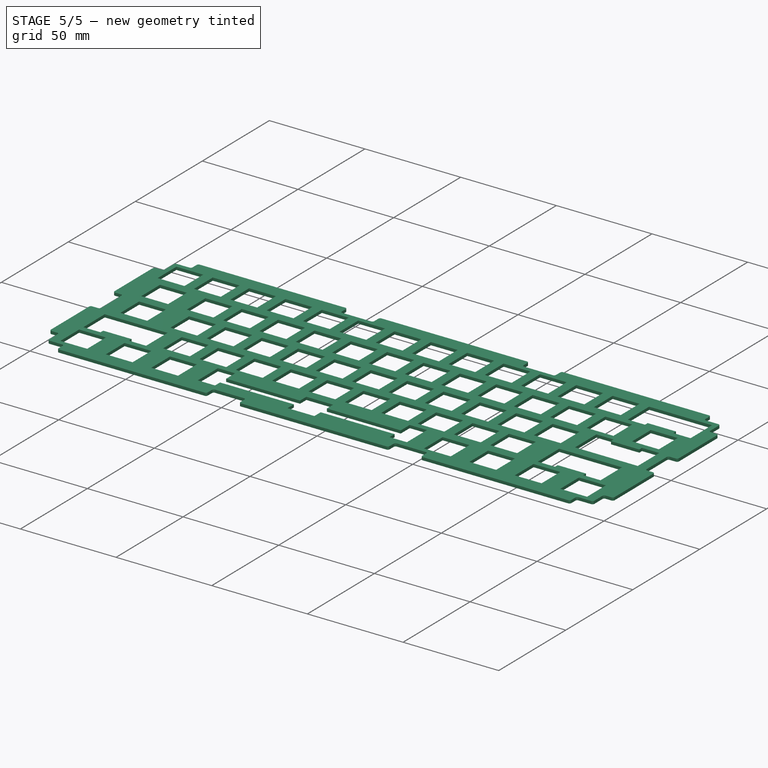
[diagram: stage 5 of 5 — iso view after this stage's code; geometry added in this stage tinted green]
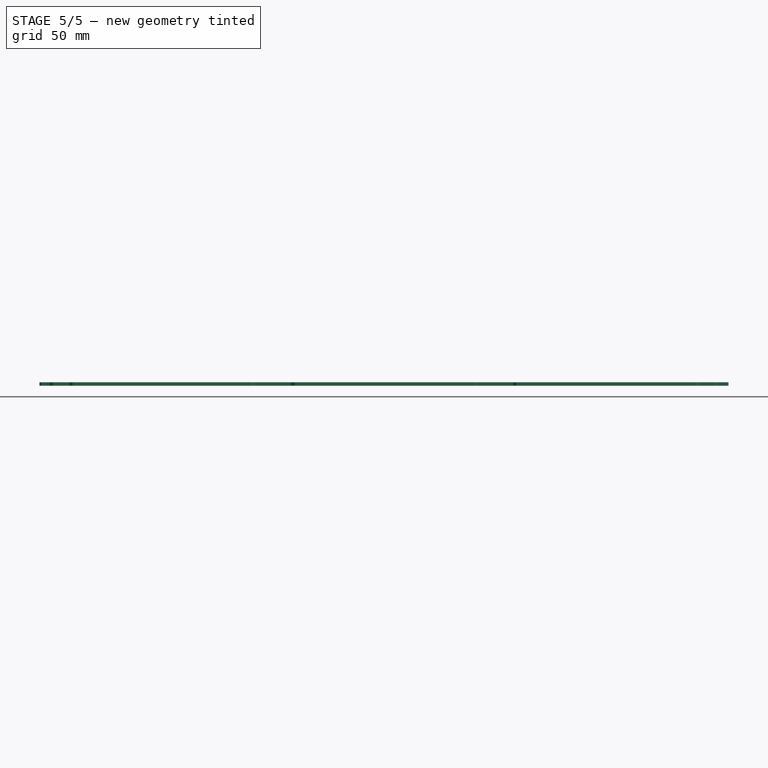
[diagram: stage 5 of 5 — front view after this stage's code; geometry added in this stage tinted green]
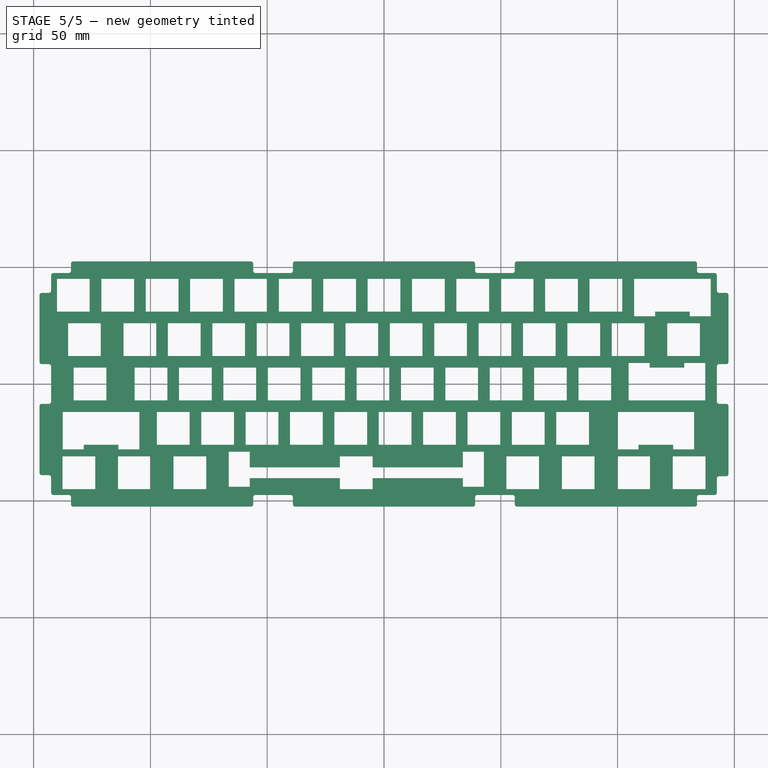
[diagram: stage 5 of 5 — top view after this stage's code; geometry added in this stage tinted green]
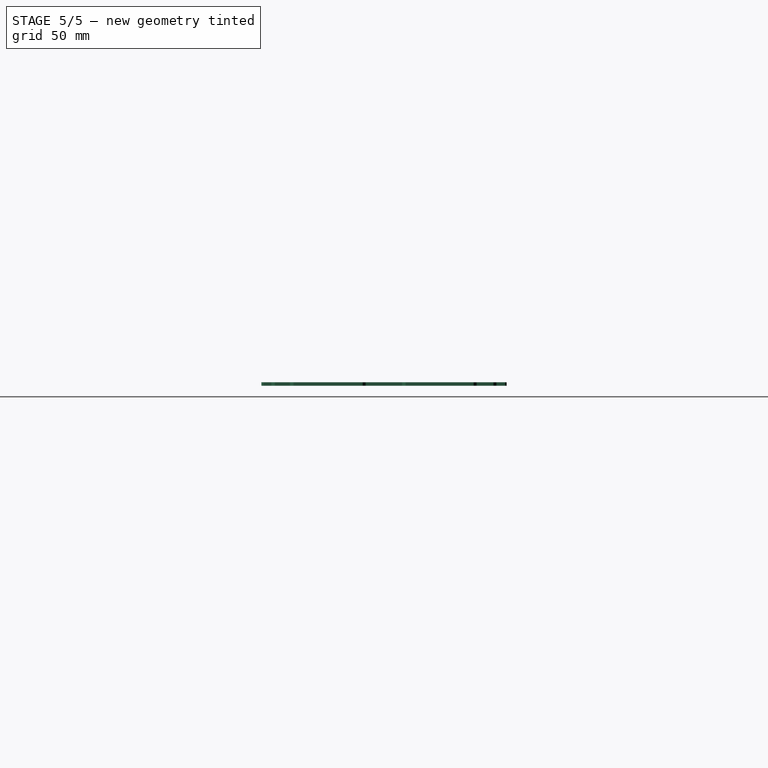
[diagram: stage 5 of 5 — right view after this stage's code; geometry added in this stage tinted green]
FEATURE [Sketcher::SketchObject] Sketch009
  FullyConstrained = true
  MapMode = 5
  Placement = pos=(0,0,1.5) rot=(0,0,1;0rad)
  Support = -> [Pocket005]
  sketch-geometry (52):
    g0: LineSegment StartX=-132.87 StartY=7 StartZ=0 EndX=-118.87 EndY=7 EndZ=0
    g1: LineSegment StartX=-118.87 StartY=7 StartZ=0 EndX=-118.87 EndY=-7 EndZ=0
    g2: LineSegment StartX=-118.87 StartY=-7 StartZ=0 EndX=-132.87 EndY=-7 EndZ=0
    g3: LineSegment StartX=-132.87 StartY=-7 StartZ=0 EndX=-132.87 EndY=7 EndZ=0
    g4: LineSegment StartX=-106.74 StartY=7 StartZ=0 EndX=-92.74 EndY=7 EndZ=0
    g5: LineSegment StartX=-92.74 StartY=7 StartZ=0 EndX=-92.74 EndY=-7 EndZ=0
    g6: LineSegment StartX=-92.74 StartY=-7 StartZ=0 EndX=-106.74 EndY=-7 EndZ=0
    g7: LineSegment StartX=-106.74 StartY=-7 StartZ=0 EndX=-106.74 EndY=7 EndZ=0
    g8: LineSegment StartX=-87.74 StartY=7 StartZ=0 EndX=-73.74 EndY=7 EndZ=0
    g9: LineSegment StartX=-73.74 StartY=7 StartZ=0 EndX=-73.74 EndY=-7 EndZ=0
    g10: LineSegment StartX=-73.74 StartY=-7 StartZ=0 EndX=-87.74 EndY=-7 EndZ=0
    g11: LineSegment StartX=-87.74 StartY=-7 StartZ=0 EndX=-87.74 EndY=7 EndZ=0
    g12: LineSegment StartX=-68.74 StartY=7 StartZ=0 EndX=-54.74 EndY=7 EndZ=0
    g13: LineSegment StartX=-54.74 StartY=7 StartZ=0 EndX=-54.74 EndY=-7 EndZ=0
    g14: LineSegment StartX=-54.74 StartY=-7 StartZ=0 EndX=-68.74 EndY=-7 EndZ=0
    g15: LineSegment StartX=-68.74 StartY=-7 StartZ=0 EndX=-68.74 EndY=7 EndZ=0
    g16: LineSegment StartX=-49.74 StartY=7 StartZ=0 EndX=-35.74 EndY=7 EndZ=0
    g17: LineSegment StartX=-35.74 StartY=7 StartZ=0 EndX=-35.74 EndY=-7 EndZ=0
    g18: LineSegment StartX=-35.74 StartY=-7 StartZ=0 EndX=-49.74 EndY=-7 EndZ=0
    g19: LineSegment StartX=-49.74 StartY=-7 StartZ=0 EndX=-49.74 EndY=7 EndZ=0
    g20: LineSegment StartX=-30.74 StartY=7 StartZ=0 EndX=-16.74 EndY=7 EndZ=0
    g21: LineSegment StartX=-16.74 StartY=7 StartZ=0 EndX=-16.74 EndY=-7 EndZ=0
    g22: LineSegment StartX=-16.74 StartY=-7 StartZ=0 EndX=-30.74 EndY=-7 EndZ=0
    g23: LineSegment StartX=-30.74 StartY=-7 StartZ=0 EndX=-30.74 EndY=7 EndZ=0
    g24: LineSegment StartX=-11.74 StartY=7 StartZ=0 EndX=2.26 EndY=7 EndZ=0
    g25: LineSegment StartX=2.26 StartY=7 StartZ=0 EndX=2.26 EndY=-7 EndZ=0
    g26: LineSegment StartX=2.26 StartY=-7 StartZ=0 EndX=-11.74 EndY=-7 EndZ=0
    g27: LineSegment StartX=-11.74 StartY=-7 StartZ=0 EndX=-11.74 EndY=7 EndZ=0
    g28: LineSegment StartX=7.26 StartY=7 StartZ=0 EndX=21.26 EndY=7 EndZ=0
    g29: LineSegment StartX=21.26 StartY=7 StartZ=0 EndX=21.26 EndY=-7 EndZ=0
    g30: LineSegment StartX=21.26 StartY=-7 StartZ=0 EndX=7.26 EndY=-7 EndZ=0
    g31: LineSegment StartX=7.26 StartY=-7 StartZ=0 EndX=7.26 EndY=7 EndZ=0
    g32: LineSegment StartX=26.26 StartY=7 StartZ=0 EndX=40.26 EndY=7 EndZ=0
    g33: LineSegment StartX=40.26 StartY=7 StartZ=0 EndX=40.26 EndY=-7 EndZ=0
    g34: LineSegment StartX=40.26 StartY=-7 StartZ=0 EndX=26.26 EndY=-7 EndZ=0
    g35: LineSegment StartX=26.26 StartY=-7 StartZ=0 EndX=26.26 EndY=7 EndZ=0
    g36: LineSegment StartX=45.26 StartY=7 StartZ=0 EndX=59.26 EndY=7 EndZ=0
    g37: LineSegment StartX=59.26 StartY=7 StartZ=0 EndX=59.26 EndY=-7 EndZ=0
    g38: LineSegment StartX=59.26 StartY=-7 StartZ=0 EndX=45.26 EndY=-7 EndZ=0
    g39: LineSegment StartX=45.26 StartY=-7 StartZ=0 EndX=45.26 EndY=7 EndZ=0
    g40: LineSegment StartX=64.26 StartY=7 StartZ=0 EndX=78.26 EndY=7 EndZ=0
    g41: LineSegment StartX=78.26 StartY=7 StartZ=0 EndX=78.26 EndY=-7 EndZ=0
    g42: LineSegment StartX=78.26 StartY=-7 StartZ=0 EndX=64.26 EndY=-7 EndZ=0
    g43: LineSegment StartX=64.26 StartY=-7 StartZ=0 EndX=64.26 EndY=7 EndZ=0
    g44: LineSegment StartX=83.26 StartY=7 StartZ=0 EndX=97.26 EndY=7 EndZ=0
    g45: LineSegment StartX=97.26 StartY=7 StartZ=0 EndX=97.26 EndY=-7 EndZ=0
    g46: LineSegment StartX=97.26 StartY=-7 StartZ=0 EndX=83.26 EndY=-7 EndZ=0
    g47: LineSegment StartX=83.26 StartY=-7 StartZ=0 EndX=83.26 EndY=7 EndZ=0
    g48: LineSegment StartX=114.13 StartY=7 StartZ=0 EndX=128.13 EndY=7 EndZ=0
    g49: LineSegment StartX=128.13 StartY=7 StartZ=0 EndX=128.13 EndY=-7 EndZ=0
    g50: LineSegment StartX=128.13 StartY=-7 StartZ=0 EndX=114.13 EndY=-7 EndZ=0
    g51: LineSegment StartX=114.13 StartY=-7 StartZ=0 EndX=114.13 EndY=7 EndZ=0
  constraints (156):
    c: Coincident(g0,g1)
    c: Coincident(g1,g2)
    c: Coincident(g2,g3)
    c: Coincident(g3,g0)
    c: Horizontal(g0)
    c: Horizontal(g2)
    c: Vertical(g1)
    c: Vertical(g3)
    c: DistanceY(g3,g3) = 14
    c: DistanceX(g0,g0) = 14
    c: DistanceX(g0,g-1) = 132.87
    c: DistanceY(g-1,g0) = 7
    c: Coincident(g4,g5)
    c: Coincident(g5,g6)
    c: Coincident(g6,g7)
    c: Coincident(g7,g4)
    c: Horizontal(g4)
    c: Horizontal(g6)
    c: Vertical(g5)
    c: Vertical(g7)
    c: DistanceX(g4,g4) = 14
    c: DistanceY(g7,g7) = 14
    c: DistanceX(g0,g4) = 12.13
    c: DistanceY(g-1,g4) = 7
    c: Coincident(g8,g9)
    c: Coincident(g9,g10)
    c: Coincident(g10,g11)
    c: Coincident(g11,g8)
    c: Horizontal(g8)
    c: Horizontal(g10)
    c: Vertical(g9)
    c: Vertical(g11)
    c: Coincident(g12,g13)
    c: Coincident(g13,g14)
    c: Coincident(g14,g15)
    c: Coincident(g15,g12)
    c: Horizontal(g12)
    c: Horizontal(g14)
    c: Vertical(g13)
    c: Vertical(g15)
    c: Coincident(g16,g17)
    c: Coincident(g17,g18)
    c: Coincident(g18,g19)
    c: Coincident(g19,g16)
    c: Horizontal(g16)
    c: Horizontal(g18)
    c: Vertical(g17)
    c: Vertical(g19)
    c: Coincident(g20,g21)
    c: Coincident(g21,g22)
    c: Coincident(g22,g23)
    c: Coincident(g23,g20)
    c: Horizontal(g20)
    c: Horizontal(g22)
    c: Vertical(g21)
    c: Vertical(g23)
    c: Coincident(g24,g25)
    c: Coincident(g25,g26)
    c: Coincident(g26,g27)
    c: Coincident(g27,g24)
    c: Horizontal(g24)
    c: Horizontal(g26)
    c: Vertical(g25)
    c: Vertical(g27)
    c: DistanceX(g8,g8) = 14
    c: DistanceX(g12,g12) = 14
    c: DistanceX(g16,g16) = 14
    c: DistanceX(g20,g20) = 14
    c: DistanceX(g24,g24) = 14
    c: DistanceY(g11,g11) = 14
    c: DistanceY(g15,g15) = 14
    c: DistanceY(g19,g19) = 14
    c: DistanceY(g23,g23) = 14
    c: DistanceY(g27,g27) = 14
    c: DistanceX(g4,g8) = 5
    c: DistanceX(g8,g12) = 5
    c: DistanceX(g12,g16) = 5
    c: DistanceX(g16,g20) = 5
    c: DistanceX(g20,g24) = 5
    c: DistanceY(g-1,g8) = 7
    c: DistanceY(g-1,g12) = 7
    c: DistanceY(g-1,g16) = 7
    c: DistanceY(g-1,g20) = 7
    c: DistanceY(g-1,g24) = 7
    c: Coincident(g28,g29)
    c: Coincident(g29,g30)
    c: Coincident(g30,g31)
    c: Coincident(g31,g28)
    c: Horizontal(g28)
    c: Horizontal(g30)
    c: Vertical(g29)
    c: Vertical(g31)
    c: Coincident(g32,g33)
    c: Coincident(g33,g34)
    c: Coincident(g34,g35)
    c: Coincident(g35,g32)
    c: Horizontal(g32)
    c: Horizontal(g34)
    c: Vertical(g33)
    c: Vertical(g35)
    c: Coincident(g36,g37)
    c: Coincident(g37,g38)
    c: Coincident(g38,g39)
    c: Coincident(g39,g36)
    c: Horizontal(g36)
    c: Horizontal(g38)
    c: Vertical(g37)
    c: Vertical(g39)
    c: Coincident(g40,g41)
    c: Coincident(g41,g42)
    c: Coincident(g42,g43)
    c: Coincident(g43,g40)
    c: Horizontal(g40)
    c: Horizontal(g42)
    c: Vertical(g41)
    c: Vertical(g43)
    c: Coincident(g44,g45)
    c: Coincident(g45,g46)
    c: Coincident(g46,g47)
    c: Coincident(g47,g44)
    c: Horizontal(g44)
    c: Horizontal(g46)
    c: Vertical(g45)
    c: Vertical(g47)
    c: DistanceX(g28,g28) = 14
    c: DistanceX(g32,g32) = 14
    c: DistanceX(g36,g36) = 14
    c: DistanceX(g40,g40) = 14
    c: DistanceX(g44,g44) = 14
    c: DistanceY(g47,g47) = 14
    c: DistanceY(g43,g43) = 14
    c: DistanceY(g39,g39) = 14
    c: DistanceY(g35,g35) = 14
    c: DistanceY(g31,g31) = 14
    c: DistanceY(g-1,g28) = 7
    c: DistanceY(g-1,g32) = 7
    c: DistanceY(g-1,g36) = 7
    c: DistanceY(g-1,g40) = 7
    c: DistanceY(g-1,g44) = 7
    c: DistanceX(g40,g44) = 5
    c: DistanceX(g36,g40) = 5
    c: DistanceX(g32,g36) = 5
    c: DistanceX(g24,g28) = 5
    c: DistanceX(g28,g32) = 5
    c: Coincident(g48,g49)
    c: Coincident(g49,g50)
    c: Coincident(g50,g51)
    c: Coincident(g51,g48)
    c: Horizontal(g48)
    c: Horizontal(g50)
    c: Vertical(g49)
    c: Vertical(g51)
    c: DistanceX(g48,g48) = 14
    c: DistanceY(g51,g51) = 14
    c: DistanceY(g-1,g48) = 7
    c: DistanceX(g44,g48) = 16.87
FEATURE [PartDesign::Pocket] Pocket006
  BaseFeature = -> Pocket005
  Length = 1.5
  Length2 = 100
  Profile = -> Sketch009
  Type = 0
FEATURE [Sketcher::SketchObject] Sketch010
  FullyConstrained = true
  MapMode = 5
  Placement = pos=(0,0,1.5) rot=(0,0,1;0rad)
  Support = -> [Pocket006]
  sketch-geometry (48):
    g0: LineSegment StartX=-128.12 StartY=-12 StartZ=0 EndX=-114.12 EndY=-12 EndZ=0
    g1: LineSegment StartX=-114.12 StartY=-12 StartZ=0 EndX=-114.12 EndY=-26 EndZ=0
    g2: LineSegment StartX=-114.12 StartY=-26 StartZ=0 EndX=-128.12 EndY=-26 EndZ=0
    g3: LineSegment StartX=-128.12 StartY=-26 StartZ=0 EndX=-128.12 EndY=-12 EndZ=0
    g4: LineSegment StartX=-97.24 StartY=-12 StartZ=0 EndX=-83.24 EndY=-12 EndZ=0
    g5: LineSegment StartX=-83.24 StartY=-12 StartZ=0 EndX=-83.24 EndY=-26 EndZ=0
    g6: LineSegment StartX=-83.24 StartY=-26 StartZ=0 EndX=-97.24 EndY=-26 EndZ=0
    g7: LineSegment StartX=-97.24 StartY=-26 StartZ=0 EndX=-97.24 EndY=-12 EndZ=0
    g8: LineSegment StartX=-78.24 StartY=-12 StartZ=0 EndX=-64.24 EndY=-12 EndZ=0
    g9: LineSegment StartX=-64.24 StartY=-12 StartZ=0 EndX=-64.24 EndY=-26 EndZ=0
    g10: LineSegment StartX=-64.24 StartY=-26 StartZ=0 EndX=-78.24 EndY=-26 EndZ=0
    g11: LineSegment StartX=-78.24 StartY=-26 StartZ=0 EndX=-78.24 EndY=-12 EndZ=0
    g12: LineSegment StartX=-59.24 StartY=-12 StartZ=0 EndX=-45.24 EndY=-12 EndZ=0
    g13: LineSegment StartX=-45.24 StartY=-12 StartZ=0 EndX=-45.24 EndY=-26 EndZ=0
    g14: LineSegment StartX=-45.24 StartY=-26 StartZ=0 EndX=-59.24 EndY=-26 EndZ=0
    g15: LineSegment StartX=-59.24 StartY=-26 StartZ=0 EndX=-59.24 EndY=-12 EndZ=0
    g16: LineSegment StartX=-40.24 StartY=-12 StartZ=0 EndX=-26.24 EndY=-12 EndZ=0
    g17: LineSegment StartX=-26.24 StartY=-12 StartZ=0 EndX=-26.24 EndY=-26 EndZ=0
    g18: LineSegment StartX=-26.24 StartY=-26 StartZ=0 EndX=-40.24 EndY=-26 EndZ=0
    g19: LineSegment StartX=-40.24 StartY=-26 StartZ=0 EndX=-40.24 EndY=-12 EndZ=0
    g20: LineSegment StartX=-21.24 StartY=-12 StartZ=0 EndX=-7.24 EndY=-12 EndZ=0
    g21: LineSegment StartX=-7.24 StartY=-12 StartZ=0 EndX=-7.24 EndY=-26 EndZ=0
    g22: LineSegment StartX=-7.24 StartY=-26 StartZ=0 EndX=-21.24 EndY=-26 EndZ=0
    g23: LineSegment StartX=-21.24 StartY=-26 StartZ=0 EndX=-21.24 EndY=-12 EndZ=0
    g24: LineSegment StartX=-2.24 StartY=-12 StartZ=0 EndX=11.76 EndY=-12 EndZ=0
    g25: LineSegment StartX=11.76 StartY=-12 StartZ=0 EndX=11.76 EndY=-26 EndZ=0
    g26: LineSegment StartX=11.76 StartY=-26 StartZ=0 EndX=-2.24 EndY=-26 EndZ=0
    g27: LineSegment StartX=-2.24 StartY=-26 StartZ=0 EndX=-2.24 EndY=-12 EndZ=0
    g28: LineSegment StartX=16.76 StartY=-12 StartZ=0 EndX=30.76 EndY=-12 EndZ=0
    g29: LineSegment StartX=30.76 StartY=-12 StartZ=0 EndX=30.76 EndY=-26 EndZ=0
    g30: LineSegment StartX=30.76 StartY=-26 StartZ=0 EndX=16.76 EndY=-26 EndZ=0
    g31: LineSegment StartX=16.76 StartY=-26 StartZ=0 EndX=16.76 EndY=-12 EndZ=0
    g32: LineSegment StartX=35.76 StartY=-12 StartZ=0 EndX=49.76 EndY=-12 EndZ=0
    g33: LineSegment StartX=49.76 StartY=-12 StartZ=0 EndX=49.76 EndY=-26 EndZ=0
    g34: LineSegment StartX=49.76 StartY=-26 StartZ=0 EndX=35.76 EndY=-26 EndZ=0
    g35: LineSegment StartX=35.76 StartY=-26 StartZ=0 EndX=35.76 EndY=-12 EndZ=0
    g36: LineSegment StartX=54.76 StartY=-12 StartZ=0 EndX=68.76 EndY=-12 EndZ=0
    g37: LineSegment StartX=68.76 StartY=-12 StartZ=0 EndX=68.76 EndY=-26 EndZ=0
    g38: LineSegment StartX=68.76 StartY=-26 StartZ=0 EndX=54.76 EndY=-26 EndZ=0
    g39: LineSegment StartX=54.76 StartY=-26 StartZ=0 EndX=54.76 EndY=-12 EndZ=0
    g40: LineSegment StartX=73.76 StartY=-12 StartZ=0 EndX=87.76 EndY=-12 EndZ=0
    g41: LineSegment StartX=87.76 StartY=-12 StartZ=0 EndX=87.76 EndY=-26 EndZ=0
    g42: LineSegment StartX=87.76 StartY=-26 StartZ=0 EndX=73.76 EndY=-26 EndZ=0
    g43: LineSegment StartX=73.76 StartY=-26 StartZ=0 EndX=73.76 EndY=-12 EndZ=0
    g44: LineSegment StartX=109.38 StartY=-12 StartZ=0 EndX=123.38 EndY=-12 EndZ=0
    g45: LineSegment StartX=123.38 StartY=-12 StartZ=0 EndX=123.38 EndY=-26 EndZ=0
    g46: LineSegment StartX=123.38 StartY=-26 StartZ=0 EndX=109.38 EndY=-26 EndZ=0
    g47: LineSegment StartX=109.38 StartY=-26 StartZ=0 EndX=109.38 EndY=-12 EndZ=0
  constraints (144):
    c: Coincident(g0,g1)
    c: Coincident(g1,g2)
    c: Coincident(g2,g3)
    c: Coincident(g3,g0)
    c: Horizontal(g0)
    c: Horizontal(g2)
    c: Vertical(g1)
    c: Vertical(g3)
    c: DistanceY(g3,g3) = 14
    c: DistanceX(g0,g0) = 14
    c: DistanceY(g0,g-1) = 12
    c: DistanceX(g2,g-1) = 128.12
    c: Coincident(g4,g5)
    c: Coincident(g5,g6)
    c: Coincident(g6,g7)
    c: Coincident(g7,g4)
    c: Horizontal(g4)
    c: Horizontal(g6)
    c: Vertical(g5)
    c: Vertical(g7)
    c: DistanceX(g4,g4) = 14
    c: DistanceY(g7,g7) = 14
    c: Coincident(g8,g9)
    c: Coincident(g9,g10)
    c: Coincident(g10,g11)
    c: Coincident(g11,g8)
    c: Horizontal(g8)
    c: Horizontal(g10)
    c: Vertical(g9)
    c: Vertical(g11)
    c: Coincident(g12,g13)
    c: Coincident(g13,g14)
    c: Coincident(g14,g15)
    c: Coincident(g15,g12)
    c: Horizontal(g12)
    c: Horizontal(g14)
    c: Vertical(g13)
    c: Vertical(g15)
    c: Coincident(g16,g17)
    c: Coincident(g17,g18)
    c: Coincident(g18,g19)
    c: Coincident(g19,g16)
    c: Horizontal(g16)
    c: Horizontal(g18)
    c: Vertical(g17)
    c: Vertical(g19)
    c: DistanceX(g8,g8) = 14
    c: DistanceX(g12,g12) = 14
    c: DistanceX(g16,g16) = 14
    c: DistanceY(g19,g19) = 14
    c: DistanceY(g15,g15) = 14
    c: DistanceY(g11,g11) = 14
    c: DistanceY(g4,g-1) = 12
    c: DistanceY(g8,g-1) = 12
    c: DistanceY(g12,g-1) = 12
    c: DistanceY(g16,g-1) = 12
    c: DistanceX(g1,g6) = 16.88
    c: DistanceX(g5,g10) = 5
    c: DistanceX(g9,g14) = 5
    c: DistanceX(g13,g18) = 5
    c: Coincident(g20,g21)
    c: Coincident(g21,g22)
    c: Coincident(g22,g23)
    c: Coincident(g23,g20)
    c: Horizontal(g20)
    c: Horizontal(g22)
    c: Vertical(g21)
    c: Vertical(g23)
    c: Coincident(g24,g25)
    c: Coincident(g25,g26)
    c: Coincident(g26,g27)
    c: Coincident(g27,g24)
    c: Horizontal(g24)
    c: Horizontal(g26)
    c: Vertical(g25)
    c: Vertical(g27)
    c: Coincident(g28,g29)
    c: Coincident(g29,g30)
    c: Coincident(g30,g31)
    c: Coincident(g31,g28)
    c: Horizontal(g28)
    c: Horizontal(g30)
    c: Vertical(g29)
    c: Vertical(g31)
    c: Coincident(g32,g33)
    c: Coincident(g33,g34)
    c: Coincident(g34,g35)
    c: Coincident(g35,g32)
    c: Horizontal(g32)
    c: Horizontal(g34)
    c: Vertical(g33)
    c: Vertical(g35)
    c: Coincident(g36,g37)
    c: Coincident(g37,g38)
    c: Coincident(g38,g39)
    c: Coincident(g39,g36)
    c: Horizontal(g36)
    c: Horizontal(g38)
    c: Vertical(g37)
    c: Vertical(g39)
    c: Coincident(g40,g41)
    c: Coincident(g41,g42)
    c: Coincident(g42,g43)
    c: Coincident(g43,g40)
    c: Horizontal(g40)
    c: Horizontal(g42)
    c: Vertical(g41)
    c: Vertical(g43)
    c: DistanceX(g20,g20) = 14
    c: DistanceX(g24,g24) = 14
    c: DistanceX(g28,g28) = 14
    c: DistanceX(g32,g32) = 14
    c: DistanceX(g36,g36) = 14
    c: DistanceX(g40,g40) = 14
    c: DistanceY(g43,g43) = 14
    c: DistanceY(g39,g39) = 14
    c: DistanceY(g35,g35) = 14
    c: DistanceY(g31,g31) = 14
    c: DistanceY(g27,g27) = 14
    c: DistanceY(g23,g23) = 14
    c: DistanceY(g20,g-1) = 12
    c: DistanceY(g24,g-1) = 12
    c: DistanceY(g28,g-1) = 12
    c: DistanceY(g32,g-1) = 12
    c: DistanceY(g36,g-1) = 12
    c: DistanceX(g17,g22) = 5
    c: DistanceX(g21,g26) = 5
    c: DistanceX(g25,g30) = 5
    c: DistanceX(g29,g34) = 5
    c: DistanceX(g33,g38) = 5
    c: DistanceX(g37,g42) = 5
    c: DistanceY(g40,g-1) = 12
    c: Coincident(g44,g45)
    c: Coincident(g45,g46)
    c: Coincident(g46,g47)
    c: Coincident(g47,g44)
    c: Horizontal(g44)
    c: Horizontal(g46)
    c: Vertical(g45)
    c: Vertical(g47)
    c: DistanceX(g44,g44) = 14
    c: DistanceY(g45,g45) = 14
    c: DistanceX(g40,g44) = 21.62
    c: DistanceY(g44,g-1) = 12
FEATURE [PartDesign::Pocket] Pocket007
  BaseFeature = -> Pocket006
  Length = 1.5
  Length2 = 100
  Profile = -> Sketch010
  Type = 0
FEATURE [Sketcher::SketchObject] Sketch011
  FullyConstrained = true
  MapMode = 5
  Placement = pos=(0,0,1.5) rot=(0,0,1;0rad)
  Support = -> [Pocket007]
  sketch-geometry (32):
    g0: LineSegment StartX=-137.62 StartY=-31 StartZ=0 EndX=-123.62 EndY=-31 EndZ=0
    g1: LineSegment StartX=-123.62 StartY=-31 StartZ=0 EndX=-123.62 EndY=-45 EndZ=0
    g2: LineSegment StartX=-123.62 StartY=-45 StartZ=0 EndX=-137.62 EndY=-45 EndZ=0
    g3: LineSegment StartX=-137.62 StartY=-45 StartZ=0 EndX=-137.62 EndY=-31 EndZ=0
    g4: LineSegment StartX=-113.87 StartY=-31 StartZ=0 EndX=-99.87 EndY=-31 EndZ=0
    g5: LineSegment StartX=-99.87 StartY=-31 StartZ=0 EndX=-99.87 EndY=-45 EndZ=0
    g6: LineSegment StartX=-99.87 StartY=-45 StartZ=0 EndX=-113.87 EndY=-45 EndZ=0
    g7: LineSegment StartX=-113.87 StartY=-45 StartZ=0 EndX=-113.87 EndY=-31 EndZ=0
    g8: LineSegment StartX=-90.12 StartY=-31 StartZ=0 EndX=-76.12 EndY=-31 EndZ=0
    g9: LineSegment StartX=-76.12 StartY=-31 StartZ=0 EndX=-76.12 EndY=-45 EndZ=0
    g10: LineSegment StartX=-76.12 StartY=-45 StartZ=0 EndX=-90.12 EndY=-45 EndZ=0
    g11: LineSegment StartX=-90.12 StartY=-45 StartZ=0 EndX=-90.12 EndY=-31 EndZ=0
    g12: LineSegment StartX=-18.87 StartY=-31 StartZ=0 EndX=-4.87 EndY=-31 EndZ=0
    g13: LineSegment StartX=-4.87 StartY=-31 StartZ=0 EndX=-4.87 EndY=-45 EndZ=0
    g14: LineSegment StartX=-4.87 StartY=-45 StartZ=0 EndX=-18.87 EndY=-45 EndZ=0
    g15: LineSegment StartX=-18.87 StartY=-45 StartZ=0 EndX=-18.87 EndY=-31 EndZ=0
    g16: LineSegment StartX=99.88 StartY=-31 StartZ=0 EndX=113.88 EndY=-31 EndZ=0
    g17: LineSegment StartX=113.88 StartY=-31 StartZ=0 EndX=113.88 EndY=-45 EndZ=0
    g18: LineSegment StartX=113.88 StartY=-45 StartZ=0 EndX=99.88 EndY=-45 EndZ=0
    g19: LineSegment StartX=99.88 StartY=-45 StartZ=0 EndX=99.88 EndY=-31 EndZ=0
    g20: LineSegment StartX=76.13 StartY=-31 StartZ=0 EndX=90.13 EndY=-31 EndZ=0
    g21: LineSegment StartX=90.13 StartY=-31 StartZ=0 EndX=90.13 EndY=-45 EndZ=0
    g22: LineSegment StartX=90.13 StartY=-45 StartZ=0 EndX=76.13 EndY=-45 EndZ=0
    g23: LineSegment StartX=76.13 StartY=-45 StartZ=0 EndX=76.13 EndY=-31 EndZ=0
    g24: LineSegment StartX=123.63 StartY=-31 StartZ=0 EndX=137.63 EndY=-31 EndZ=0
    g25: LineSegment StartX=137.63 StartY=-31 StartZ=0 EndX=137.63 EndY=-45 EndZ=0
    g26: LineSegment StartX=137.63 StartY=-45 StartZ=0 EndX=123.63 EndY=-45 EndZ=0
    g27: LineSegment StartX=123.63 StartY=-45 StartZ=0 EndX=123.63 EndY=-31 EndZ=0
    g28: LineSegment StartX=52.38 StartY=-31 StartZ=0 EndX=66.38 EndY=-31 EndZ=0
    g29: LineSegment StartX=66.38 StartY=-31 StartZ=0 EndX=66.38 EndY=-45 EndZ=0
    g30: LineSegment StartX=66.38 StartY=-45 StartZ=0 EndX=52.38 EndY=-45 EndZ=0
    g31: LineSegment StartX=52.38 StartY=-45 StartZ=0 EndX=52.38 EndY=-31 EndZ=0
  constraints (96):
    c: Coincident(g0,g1)
    c: Coincident(g1,g2)
    c: Coincident(g2,g3)
    c: Coincident(g3,g0)
    c: Horizontal(g0)
    c: Horizontal(g2)
    c: Vertical(g1)
    c: Vertical(g3)
    c: DistanceY(g3,g3) = 14
    c: DistanceX(g0,g0) = 14
    c: DistanceX(g0,g-1) = 137.62
    c: DistanceY(g0,g-1) = 31
    c: Coincident(g4,g5)
    c: Coincident(g5,g6)
    c: Coincident(g6,g7)
    c: Coincident(g7,g4)
    c: Horizontal(g4)
    c: Horizontal(g6)
    c: Vertical(g5)
    c: Vertical(g7)
    c: Coincident(g8,g9)
    c: Coincident(g9,g10)
    c: Coincident(g10,g11)
    c: Coincident(g11,g8)
    c: Horizontal(g8)
    c: Horizontal(g10)
    c: Vertical(g9)
    c: Vertical(g11)
    c: Coincident(g12,g13)
    c: Coincident(g13,g14)
    c: Coincident(g14,g15)
    c: Coincident(g15,g12)
    c: Horizontal(g12)
    c: Horizontal(g14)
    c: Vertical(g13)
    c: Vertical(g15)
    c: Coincident(g16,g17)
    c: Coincident(g17,g18)
    c: Coincident(g18,g19)
    c: Coincident(g19,g16)
    c: Horizontal(g16)
    c: Horizontal(g18)
    c: Vertical(g17)
    c: Vertical(g19)
    c: Coincident(g20,g21)
    c: Coincident(g21,g22)
    c: Coincident(g22,g23)
    c: Coincident(g23,g20)
    c: Horizontal(g20)
    c: Horizontal(g22)
    c: Vertical(g21)
    c: Vertical(g23)
    c: Coincident(g24,g25)
    c: Coincident(g25,g26)
    c: Coincident(g26,g27)
    c: Coincident(g27,g24)
    c: Horizontal(g24)
    c: Horizontal(g26)
    c: Vertical(g25)
    c: Vertical(g27)
    c: Coincident(g28,g29)
    c: Coincident(g29,g30)
    c: Coincident(g30,g31)
    c: Coincident(g31,g28)
    c: Horizontal(g28)
    c: Horizontal(g30)
    c: Vertical(g29)
    c: Vertical(g31)
    c: DistanceX(g4,g4) = 14
    c: DistanceX(g8,g8) = 14
    c: DistanceX(g12,g12) = 14
    c: DistanceX(g28,g28) = 14
    c: DistanceX(g20,g20) = 14
    c: DistanceX(g16,g16) = 14
    c: DistanceX(g24,g24) = 14
    c: DistanceY(g27,g27) = 14
    c: DistanceY(g19,g19) = 14
    c: DistanceY(g23,g23) = 14
    c: DistanceY(g31,g31) = 14
    c: DistanceY(g15,g15) = 14
    c: DistanceY(g11,g11) = 14
    c: DistanceY(g7,g7) = 14
    c: DistanceY(g4,g-1) = 31
    c: DistanceY(g8,g-1) = 31
    c: DistanceY(g12,g-1) = 31
    c: DistanceY(g28,g-1) = 31
    c: DistanceY(g20,g-1) = 31
    c: DistanceY(g16,g-1) = 31
    c: DistanceY(g24,g-1) = 31
    c: DistanceX(g1,g6) = 9.75
    c: DistanceX(g5,g10) = 9.75
    c: DistanceX(g29,g22) = 9.75
    c: DistanceX(g21,g18) = 9.75
    c: DistanceX(g17,g26) = 9.75
    c: DistanceX(g9,g14) = 57.25
    c: DistanceX(g13,g30) = 57.25
FEATURE [PartDesign::Pocket] Pocket008
  BaseFeature = -> Pocket007
  Length = 1.5
  Length2 = 100
  Profile = -> Sketch011
  Type = 0
FEATURE [Sketcher::SketchObject] Sketch012
  FullyConstrained = true
  MapMode = 5
  Placement = pos=(0,0,1.5) rot=(0,0,1;0rad)
  Support = -> [Pocket008]
  sketch-geometry (8):
    g0: LineSegment StartX=-58.49 StartY=-35.7 StartZ=0 EndX=-18.87 EndY=-35.7 EndZ=0
    g1: LineSegment StartX=-18.87 StartY=-35.7 StartZ=0 EndX=-18.87 EndY=-40.3 EndZ=0
    g2: LineSegment StartX=-18.87 StartY=-40.3 StartZ=0 EndX=-58.49 EndY=-40.3 EndZ=0
    g3: LineSegment StartX=-58.49 StartY=-40.3 StartZ=0 EndX=-58.49 EndY=-35.7 EndZ=0
    g4: LineSegment StartX=-4.87 StartY=-35.7 StartZ=0 EndX=34.75 EndY=-35.7 EndZ=0
    g5: LineSegment StartX=34.75 StartY=-35.7 StartZ=0 EndX=34.75 EndY=-40.3 EndZ=0
    g6: LineSegment StartX=34.75 StartY=-40.3 StartZ=0 EndX=-4.87 EndY=-40.3 EndZ=0
    g7: LineSegment StartX=-4.87 StartY=-40.3 StartZ=0 EndX=-4.87 EndY=-35.7 EndZ=0
  constraints (24):
    c: Coincident(g0,g1)
    c: Coincident(g1,g2)
    c: Coincident(g2,g3)
    c: Coincident(g3,g0)
    c: Horizontal(g0)
    c: Horizontal(g2)
    c: Vertical(g1)
    c: Vertical(g3)
    c: DistanceX(g0,g0) = 39.62
    c: DistanceY(g3,g3) = 4.6
    c: DistanceY(g0,g-1) = 35.7
    c: DistanceX(g1,g-1) = 18.87
    c: Coincident(g4,g5)
    c: Coincident(g5,g6)
    c: Coincident(g6,g7)
    c: Coincident(g7,g4)
    c: Horizontal(g4)
    c: Horizontal(g6)
    c: Vertical(g5)
    c: Vertical(g7)
    c: DistanceX(g6,g6) = 39.62
    c: DistanceY(g5,g5) = 4.6
    c: DistanceX(g1,g6) = 14
    c: DistanceY(g4,g-1) = 35.7
FEATURE [PartDesign::Pocket] Pocket009
  BaseFeature = -> Pocket008
  Length = 1.5
  Length2 = 100
  Profile = -> Sketch012
  Type = 0
FEATURE [Sketcher::SketchObject] Sketch013
  FullyConstrained = true
  MapMode = 5
  Placement = pos=(0,0,1.5) rot=(0,0,1;0rad)
  Support = -> [Pocket009]
  sketch-geometry (8):
    g0: LineSegment StartX=-66.49 StartY=-29 StartZ=0 EndX=-57.49 EndY=-29 EndZ=0
    g1: LineSegment StartX=-57.49 StartY=-29 StartZ=0 EndX=-57.49 EndY=-44 EndZ=0
    g2: LineSegment StartX=-57.49 StartY=-44 StartZ=0 EndX=-66.49 EndY=-44 EndZ=0
    g3: LineSegment StartX=-66.49 StartY=-44 StartZ=0 EndX=-66.49 EndY=-29 EndZ=0
    g4: LineSegment StartX=33.75 StartY=-29 StartZ=0 EndX=42.75 EndY=-29 EndZ=0
    g5: LineSegment StartX=42.75 StartY=-29 StartZ=0 EndX=42.75 EndY=-44 EndZ=0
    g6: LineSegment StartX=42.75 StartY=-44 StartZ=0 EndX=33.75 EndY=-44 EndZ=0
    g7: LineSegment StartX=33.75 StartY=-44 StartZ=0 EndX=33.75 EndY=-29 EndZ=0
  constraints (24):
    c: Coincident(g0,g1)
    c: Coincident(g1,g2)
    c: Coincident(g2,g3)
    c: Coincident(g3,g0)
    c: Horizontal(g0)
    c: Horizontal(g2)
    c: Vertical(g1)
    c: Vertical(g3)
    c: DistanceX(g0,g0) = 9
    c: DistanceY(g3,g3) = 15
    c: DistanceX(g0,g-1) = 57.49
    c: DistanceY(g0,g-1) = 29
    c: Coincident(g4,g5)
    c: Coincident(g5,g6)
    c: Coincident(g6,g7)
    c: Coincident(g7,g4)
    c: Horizontal(g4)
    c: Horizontal(g6)
    c: Vertical(g5)
    c: Vertical(g7)
    c: DistanceX(g4,g4) = 9
    c: DistanceY(g5,g5) = 15
    c: DistanceY(g4,g-1) = 29
    c: DistanceX(g1,g6) = 91.24
FEATURE [PartDesign::Pocket] Pocket010
  BaseFeature = -> Pocket009
  Length = 1.5
  Length2 = 100
  Profile = -> Sketch013
  Type = 0
FEATURE [Sketcher::SketchObject] Sketch014
  FullyConstrained = true
  MapMode = 5
  Placement = pos=(0,0,1.5) rot=(0,0,1;0rad)
  Support = -> [Pocket010]
  sketch-geometry (8):
    g0: LineSegment StartX=-137.525 StartY=-12 StartZ=0 EndX=-128.525 EndY=-12 EndZ=0
    g1: LineSegment StartX=-128.525 StartY=-12 StartZ=0 EndX=-128.525 EndY=-28 EndZ=0
    g2: LineSegment StartX=-128.525 StartY=-28 StartZ=0 EndX=-137.525 EndY=-28 EndZ=0
    g3: LineSegment StartX=-137.525 StartY=-28 StartZ=0 EndX=-137.525 EndY=-12 EndZ=0
    g4: LineSegment StartX=-114.12 StartY=-12 StartZ=0 EndX=-105.12 EndY=-12 EndZ=0
    g5: LineSegment StartX=-105.12 StartY=-12 StartZ=0 EndX=-105.12 EndY=-28 EndZ=0
    g6: LineSegment StartX=-105.12 StartY=-28 StartZ=0 EndX=-114.12 EndY=-28 EndZ=0
    g7: LineSegment StartX=-114.12 StartY=-28 StartZ=0 EndX=-114.12 EndY=-12 EndZ=0
  constraints (24):
    c: Coincident(g0,g1)
    c: Coincident(g1,g2)
    c: Coincident(g2,g3)
    c: Coincident(g3,g0)
    c: Horizontal(g0)
    c: Horizontal(g2)
    c: Vertical(g1)
    c: Vertical(g3)
    c: DistanceX(g0,g0) = 9
    c: DistanceY(g0,g-1) = 12
    c: DistanceY(g1,g1) = 16
    c: DistanceX(g1,g-1) = 128.525
    c: Coincident(g4,g5)
    c: Coincident(g5,g6)
    c: Coincident(g6,g7)
    c: Coincident(g7,g4)
    c: Horizontal(g4)
    c: Horizontal(g6)
    c: Vertical(g5)
    c: Vertical(g7)
    c: DistanceX(g4,g4) = 9
    c: DistanceY(g5,g5) = 16
    c: DistanceX(g1,g6) = 14.405
    c: DistanceY(g4,g-1) = 12
FEATURE [Sketcher::SketchObject] Sketch015
  FullyConstrained = true
  MapMode = 5
  Placement = pos=(0,0,1.5) rot=(0,0,1;0rad)
  Support = -> [Pocket010]
  sketch-geometry (8):
    g0: LineSegment StartX=-137.525 StartY=-12 StartZ=0 EndX=-128.525 EndY=-12 EndZ=0
    g1: LineSegment StartX=-128.525 StartY=-12 StartZ=0 EndX=-128.525 EndY=-28 EndZ=0
    g2: LineSegment StartX=-128.525 StartY=-28 StartZ=0 EndX=-137.525 EndY=-28 EndZ=0
    g3: LineSegment StartX=-137.525 StartY=-28 StartZ=0 EndX=-137.525 EndY=-12 EndZ=0
    g4: LineSegment StartX=-113.715 StartY=-12 StartZ=0 EndX=-104.715 EndY=-12 EndZ=0
    g5: LineSegment StartX=-104.715 StartY=-12 StartZ=0 EndX=-104.715 EndY=-28 EndZ=0
    g6: LineSegment StartX=-104.715 StartY=-28 StartZ=0 EndX=-113.715 EndY=-28 EndZ=0
    g7: LineSegment StartX=-113.715 StartY=-28 StartZ=0 EndX=-113.715 EndY=-12 EndZ=0
  constraints (24):
    c: Coincident(g0,g1)
    c: Coincident(g1,g2)
    c: Coincident(g2,g3)
    c: Coincident(g3,g0)
    c: Horizontal(g0)
    c: Horizontal(g2)
    c: Vertical(g1)
    c: Vertical(g3)
    c: Coincident(g4,g5)
    c: Coincident(g5,g6)
    c: Coincident(g6,g7)
    c: Coincident(g7,g4)
    c: Horizontal(g4)
    c: Horizontal(g6)
    c: Vertical(g5)
    c: Vertical(g7)
    c: DistanceX(g4,g4) = 9
    c: DistanceX(g0,g0) = 9
    c: DistanceY(g3,g3) = 16
    c: DistanceY(g7,g7) = 16
    c: DistanceX(g1,g6) = 14.81
    c: DistanceY(g4,g-1) = 12
    c: DistanceY(g0,g-1) = 12
    c: DistanceX(g1,g-1) = 128.525
FEATURE [PartDesign::Pocket] Pocket011
  BaseFeature = -> Pocket010
  Length = 1.5
  Length2 = 100
  Profile = -> Sketch015
  Type = 0
FEATURE [Sketcher::SketchObject] Sketch016
  FullyConstrained = true
  MapMode = 5
  Placement = pos=(0,0,1.5) rot=(0,0,1;0rad)
  Support = -> [Pocket011]
  sketch-geometry (8):
    g0: LineSegment StartX=107.095 StartY=45 StartZ=0 EndX=116.095 EndY=45 EndZ=0
    g1: LineSegment StartX=116.095 StartY=45 StartZ=0 EndX=116.095 EndY=29 EndZ=0
    g2: LineSegment StartX=116.095 StartY=29 StartZ=0 EndX=107.095 EndY=29 EndZ=0
    g3: LineSegment StartX=107.095 StartY=29 StartZ=0 EndX=107.095 EndY=45 EndZ=0
    g4: LineSegment StartX=130.905 StartY=45 StartZ=0 EndX=139.905 EndY=45 EndZ=0
    g5: LineSegment StartX=139.905 StartY=45 StartZ=0 EndX=139.905 EndY=29 EndZ=0
    g6: LineSegment StartX=139.905 StartY=29 StartZ=0 EndX=130.905 EndY=29 EndZ=0
    g7: LineSegment StartX=130.905 StartY=29 StartZ=0 EndX=130.905 EndY=45 EndZ=0
  constraints (24):
    c: Coincident(g0,g1)
    c: Coincident(g1,g2)
    c: Coincident(g2,g3)
    c: Coincident(g3,g0)
    c: Horizontal(g0)
    c: Horizontal(g2)
    c: Vertical(g1)
    c: Vertical(g3)
    c: Coincident(g4,g5)
    c: Coincident(g5,g6)
    c: Coincident(g6,g7)
    c: Coincident(g7,g4)
    c: Horizontal(g4)
    c: Horizontal(g6)
    c: Vertical(g5)
    c: Vertical(g7)
    c: DistanceX(g4,g4) = 9
    c: DistanceX(g0,g0) = 9
    c: DistanceY(g3,g3) = 16
    c: DistanceY(g5,g5) = 16
    c: DistanceX(g0,g4) = 14.81
    c: DistanceX(g-1,g0) = 107.095
    c: DistanceY(g-1,g4) = 45
    c: DistanceY(g-1,g0) = 45
FEATURE [PartDesign::Pocket] Pocket012
  BaseFeature = -> Pocket011
  Length = 1.5
  Length2 = 100
  Profile = -> Sketch016
  Type = 0
FEATURE [Sketcher::SketchObject] Sketch017
  FullyConstrained = true
  MapMode = 5
  Placement = pos=(0,0,1.5) rot=(0,0,1;0rad)
  Support = -> [Pocket012]
  sketch-geometry (8):
    g0: LineSegment StartX=104.725 StartY=9 StartZ=0 EndX=113.725 EndY=9 EndZ=0
    g1: LineSegment StartX=113.725 StartY=9 StartZ=0 EndX=113.725 EndY=-7 EndZ=0
    g2: LineSegment StartX=113.725 StartY=-7 StartZ=0 EndX=104.725 EndY=-7 EndZ=0
    g3: LineSegment StartX=104.725 StartY=-7 StartZ=0 EndX=104.725 EndY=9 EndZ=0
    g4: LineSegment StartX=128.535 StartY=9 StartZ=0 EndX=137.535 EndY=9 EndZ=0
    g5: LineSegment StartX=137.535 StartY=9 StartZ=0 EndX=137.535 EndY=-7 EndZ=0
    g6: LineSegment StartX=137.535 StartY=-7 StartZ=0 EndX=128.535 EndY=-7 EndZ=0
    g7: LineSegment StartX=128.535 StartY=-7 StartZ=0 EndX=128.535 EndY=9 EndZ=0
  constraints (24):
    c: Coincident(g0,g1)
    c: Coincident(g1,g2)
    c: Coincident(g2,g3)
    c: Coincident(g3,g0)
    c: Horizontal(g0)
    c: Horizontal(g2)
    c: Vertical(g1)
    c: Vertical(g3)
    c: Coincident(g4,g5)
    c: Coincident(g5,g6)
    c: Coincident(g6,g7)
    c: Coincident(g7,g4)
    c: Horizontal(g4)
    c: Horizontal(g6)
    c: Vertical(g5)
    c: Vertical(g7)
    c: DistanceX(g0,g0) = 9
    c: DistanceX(g4,g4) = 9
    c: DistanceY(g5,g5) = 16
    c: DistanceY(g1,g1) = 16
    c: DistanceX(g-1,g0) = 104.725
    c: DistanceX(g0,g4) = 14.81
    c: DistanceY(g2,g-1) = 7
    c: DistanceY(g6,g-1) = 7
FEATURE [PartDesign::Pocket] Pocket013
  BaseFeature = -> Pocket012
  Length = 1.5
  Length2 = 100
  Profile = -> Sketch017
  Type = 0
FEATURE [Sketcher::SketchObject] Sketch018
  FullyConstrained = true
  MapMode = 5
  Placement = pos=(0,0,1.5) rot=(0,0,1;0rad)
  Support = -> [Pocket013]
  sketch-geometry (8):
    g0: LineSegment StartX=99.975 StartY=-12 StartZ=0 EndX=108.975 EndY=-12 EndZ=0
    g1: LineSegment StartX=108.975 StartY=-12 StartZ=0 EndX=108.975 EndY=-28 EndZ=0
    g2: LineSegment StartX=108.975 StartY=-28 StartZ=0 EndX=99.975 EndY=-28 EndZ=0
    g3: LineSegment StartX=99.975 StartY=-28 StartZ=0 EndX=99.975 EndY=-12 EndZ=0
    g4: LineSegment StartX=123.785 StartY=-12 StartZ=0 EndX=132.785 EndY=-12 EndZ=0
    g5: LineSegment StartX=132.785 StartY=-12 StartZ=0 EndX=132.785 EndY=-28 EndZ=0
    g6: LineSegment StartX=132.785 StartY=-28 StartZ=0 EndX=123.785 EndY=-28 EndZ=0
    g7: LineSegment StartX=123.785 StartY=-28 StartZ=0 EndX=123.785 EndY=-12 EndZ=0
  constraints (24):
    c: Coincident(g0,g1)
    c: Coincident(g1,g2)
    c: Coincident(g2,g3)
    c: Coincident(g3,g0)
    c: Horizontal(g0)
    c: Horizontal(g2)
    c: Vertical(g1)
    c: Vertical(g3)
    c: Coincident(g4,g5)
    c: Coincident(g5,g6)
    c: Coincident(g6,g7)
    c: Coincident(g7,g4)
    c: Horizontal(g4)
    c: Horizontal(g6)
    c: Vertical(g5)
    c: Vertical(g7)
    c: DistanceX(g0,g0) = 9
    c: DistanceX(g4,g4) = 9
    c: DistanceY(g5,g5) = 16
    c: DistanceY(g1,g1) = 16
    c: DistanceY(g4,g-1) = 12
    c: DistanceY(g0,g-1) = 12
    c: DistanceX(g-1,g0) = 108.975
    c: DistanceX(g1,g6) = 14.81
FEATURE [PartDesign::Pocket] Pocket014
  BaseFeature = -> Pocket013
  Length = 1.5
  Length2 = 100
  Profile = -> Sketch018
  Type = 0
FEATURE [Sketcher::SketchObject] Sketch019
  FullyConstrained = true
  MapMode = 5
  Placement = pos=(0,0,1.5) rot=(0,0,1;0rad)
  Support = -> [Pocket014]
  sketch-geometry (8):
    g0: LineSegment StartX=-128.525 StartY=-12 StartZ=0 EndX=-128.125 EndY=-12 EndZ=0
    g1: LineSegment StartX=-128.125 StartY=-12 StartZ=0 EndX=-128.125 EndY=-26 EndZ=0
    g2: LineSegment StartX=-128.125 StartY=-26 StartZ=0 EndX=-128.525 EndY=-26 EndZ=0
    g3: LineSegment StartX=-128.525 StartY=-26 StartZ=0 EndX=-128.525 EndY=-12 EndZ=0
    g4: LineSegment StartX=-114.125 StartY=-12 StartZ=0 EndX=-113.725 EndY=-12 EndZ=0
    g5: LineSegment StartX=-113.725 StartY=-12 StartZ=0 EndX=-113.725 EndY=-26 EndZ=0
    g6: LineSegment StartX=-113.725 StartY=-26 StartZ=0 EndX=-114.125 EndY=-26 EndZ=0
    g7: LineSegment StartX=-114.125 StartY=-26 StartZ=0 EndX=-114.125 EndY=-12 EndZ=0
  constraints (24):
    c: Coincident(g0,g1)
    c: Coincident(g1,g2)
    c: Coincident(g2,g3)
    c: Coincident(g3,g0)
    c: Horizontal(g0)
    c: Horizontal(g2)
    c: Vertical(g1)
    c: Vertical(g3)
    c: Coincident(g4,g5)
    c: Coincident(g5,g6)
    c: Coincident(g6,g7)
    c: Coincident(g7,g4)
    c: Horizontal(g4)
    c: Horizontal(g6)
    c: Vertical(g5)
    c: Vertical(g7)
    c: DistanceX(g0,g0) = 0.4
    c: DistanceX(g4,g4) = 0.4
    c: DistanceY(g3,g3) = 14
    c: DistanceY(g5,g5) = 14
    c: DistanceX(g0,g4) = 14
    c: DistanceY(g4,g-1) = 12
    c: DistanceY(g0,g-1) = 12
    c: DistanceX(g2,g-1) = 128.525
FEATURE [Sketcher::SketchObject] Sketch020
  FullyConstrained = true
  MapMode = 5
  Placement = pos=(0,0,1.5) rot=(0,0,1;0rad)
  Support = -> [Pocket014]
  sketch-geometry (8):
    g0: LineSegment StartX=-128.525 StartY=-12 StartZ=0 EndX=-128.12 EndY=-12 EndZ=0
    g1: LineSegment StartX=-128.12 StartY=-12 StartZ=0 EndX=-128.12 EndY=-26 EndZ=0
    g2: LineSegment StartX=-128.12 StartY=-26 StartZ=0 EndX=-128.525 EndY=-26 EndZ=0
    g3: LineSegment StartX=-128.525 StartY=-26 StartZ=0 EndX=-128.525 EndY=-12 EndZ=0
    g4: LineSegment StartX=-114.12 StartY=-12 StartZ=0 EndX=-113.715 EndY=-12 EndZ=0
    g5: LineSegment StartX=-113.715 StartY=-12 StartZ=0 EndX=-113.715 EndY=-26 EndZ=0
    g6: LineSegment StartX=-113.715 StartY=-26 StartZ=0 EndX=-114.12 EndY=-26 EndZ=0
    g7: LineSegment StartX=-114.12 StartY=-26 StartZ=0 EndX=-114.12 EndY=-12 EndZ=0
  constraints (24):
    c: Coincident(g0,g1)
    c: Coincident(g1,g2)
    c: Coincident(g2,g3)
    c: Coincident(g3,g0)
    c: Horizontal(g0)
    c: Horizontal(g2)
    c: Vertical(g1)
    c: Vertical(g3)
    c: Coincident(g4,g5)
    c: Coincident(g5,g6)
    c: Coincident(g6,g7)
    c: Coincident(g7,g4)
    c: Horizontal(g4)
    c: Horizontal(g6)
    c: Vertical(g5)
    c: Vertical(g7)
    c: DistanceX(g4,g4) = 0.405
    c: DistanceX(g0,g0) = 0.405
    c: DistanceY(g5,g5) = 14
    c: DistanceY(g3,g3) = 14
    c: DistanceX(g0,g4) = 14
    c: DistanceY(g4,g-1) = 12
    c: DistanceY(g0,g-1) = 12
    c: DistanceX(g0,g-1) = 128.12
FEATURE [PartDesign::Pocket] Pocket015
  BaseFeature = -> Pocket014
  Length = 1.5
  Length2 = 100
  Profile = -> Sketch020
  Type = 0
FEATURE [Sketcher::SketchObject] Sketch021
  FullyConstrained = true
  MapMode = 5
  Placement = pos=(0,0,1.5) rot=(0,0,1;0rad)
  Support = -> [Pocket015]
  sketch-geometry (8):
    g0: LineSegment StartX=123.38 StartY=-12 StartZ=0 EndX=123.785 EndY=-12 EndZ=0
    g1: LineSegment StartX=123.785 StartY=-12 StartZ=0 EndX=123.785 EndY=-26 EndZ=0
    g2: LineSegment StartX=123.785 StartY=-26 StartZ=0 EndX=123.38 EndY=-26 EndZ=0
    g3: LineSegment StartX=123.38 StartY=-26 StartZ=0 EndX=123.38 EndY=-12 EndZ=0
    g4: LineSegment StartX=108.975 StartY=-12 StartZ=0 EndX=109.38 EndY=-12 EndZ=0
    g5: LineSegment StartX=109.38 StartY=-12 StartZ=0 EndX=109.38 EndY=-26 EndZ=0
    g6: LineSegment StartX=109.38 StartY=-26 StartZ=0 EndX=108.975 EndY=-26 EndZ=0
    g7: LineSegment StartX=108.975 StartY=-26 StartZ=0 EndX=108.975 EndY=-12 EndZ=0
  constraints (24):
    c: Coincident(g0,g1)
    c: Coincident(g1,g2)
    c: Coincident(g2,g3)
    c: Coincident(g3,g0)
    c: Horizontal(g0)
    c: Horizontal(g2)
    c: Vertical(g1)
    c: Vertical(g3)
    c: Coincident(g4,g5)
    c: Coincident(g5,g6)
    c: Coincident(g6,g7)
    c: Coincident(g7,g4)
    c: Horizontal(g4)
    c: Horizontal(g6)
    c: Vertical(g5)
    c: Vertical(g7)
    c: DistanceY(g1,g1) = 14
    c: DistanceY(g7,g7) = 14
    c: DistanceX(g4,g0) = 14
    c: DistanceX(g4,g4) = 0.405
    c: DistanceX(g0,g0) = 0.405
    c: DistanceY(g4,g-1) = 12
    c: DistanceY(g0,g-1) = 12
    c: DistanceX(g-1,g4) = 108.975
FEATURE [PartDesign::Pocket] Pocket016
  BaseFeature = -> Pocket015
  Length = 1.5
  Length2 = 100
  Profile = -> Sketch021
  Type = 0
FEATURE [Sketcher::SketchObject] Sketch022
  FullyConstrained = true
  MapMode = 5
  Placement = pos=(0,0,1.5) rot=(0,0,1;0rad)
  Support = -> [Pocket016]
  sketch-geometry (8):
    g0: LineSegment StartX=113.725 StartY=7 StartZ=0 EndX=114.13 EndY=7 EndZ=0
    g1: LineSegment StartX=114.13 StartY=7 StartZ=0 EndX=114.13 EndY=-7 EndZ=0
    g2: LineSegment StartX=114.13 StartY=-7 StartZ=0 EndX=113.725 EndY=-7 EndZ=0
    g3: LineSegment StartX=113.725 StartY=-7 StartZ=0 EndX=113.725 EndY=7 EndZ=0
    g4: LineSegment StartX=128.13 StartY=7 StartZ=0 EndX=128.535 EndY=7 EndZ=0
    g5: LineSegment StartX=128.535 StartY=7 StartZ=0 EndX=128.535 EndY=-7 EndZ=0
    g6: LineSegment StartX=128.535 StartY=-7 StartZ=0 EndX=128.13 EndY=-7 EndZ=0
    g7: LineSegment StartX=128.13 StartY=-7 StartZ=0 EndX=128.13 EndY=7 EndZ=0
  constraints (24):
    c: Coincident(g0,g1)
    c: Coincident(g1,g2)
    c: Coincident(g2,g3)
    c: Coincident(g3,g0)
    c: Horizontal(g0)
    c: Horizontal(g2)
    c: Vertical(g1)
    c: Vertical(g3)
    c: Coincident(g4,g5)
    c: Coincident(g5,g6)
    c: Coincident(g6,g7)
    c: Coincident(g7,g4)
    c: Horizontal(g4)
    c: Horizontal(g6)
    c: Vertical(g5)
    c: Vertical(g7)
    c: DistanceY(g1,g1) = 14
    c: DistanceY(g5,g5) = 14
    c: DistanceX(g0,g4) = 14
    c: DistanceX(g0,g0) = 0.405
    c: DistanceX(g4,g4) = 0.405
    c: DistanceY(g1,g-1) = 7
    c: DistanceY(g5,g-1) = 7
    c: DistanceX(g-1,g0) = 113.725
FEATURE [PartDesign::Pocket] Pocket017
  BaseFeature = -> Pocket016
  Length = 1.5
  Length2 = 100
  Profile = -> Sketch022
  Type = 0
FEATURE [Sketcher::SketchObject] Sketch023
  FullyConstrained = true
  MapMode = 5
  Placement = pos=(0,0,1.5) rot=(0,0,1;0rad)
  Support = -> [Pocket017]
  sketch-geometry (8):
    g0: LineSegment StartX=116.095 StartY=45 StartZ=0 EndX=116.5 EndY=45 EndZ=0
    g1: LineSegment StartX=116.5 StartY=45 StartZ=0 EndX=116.5 EndY=31 EndZ=0
    g2: LineSegment StartX=116.5 StartY=31 StartZ=0 EndX=116.095 EndY=31 EndZ=0
    g3: LineSegment StartX=116.095 StartY=31 StartZ=0 EndX=116.095 EndY=45 EndZ=0
    g4: LineSegment StartX=130.5 StartY=45 StartZ=0 EndX=130.905 EndY=45 EndZ=0
    g5: LineSegment StartX=130.905 StartY=45 StartZ=0 EndX=130.905 EndY=31 EndZ=0
    g6: LineSegment StartX=130.905 StartY=31 StartZ=0 EndX=130.5 EndY=31 EndZ=0
    g7: LineSegment StartX=130.5 StartY=31 StartZ=0 EndX=130.5 EndY=45 EndZ=0
  constraints (24):
    c: Coincident(g0,g1)
    c: Coincident(g1,g2)
    c: Coincident(g2,g3)
    c: Coincident(g3,g0)
    c: Horizontal(g0)
    c: Horizontal(g2)
    c: Vertical(g1)
    c: Vertical(g3)
    c: Coincident(g4,g5)
    c: Coincident(g5,g6)
    c: Coincident(g6,g7)
    c: Coincident(g7,g4)
    c: Horizontal(g4)
    c: Horizontal(g6)
    c: Vertical(g5)
    c: Vertical(g7)
    c: DistanceY(g5,g5) = 14
    c: DistanceY(g3,g3) = 14
    c: DistanceX(g0,g4) = 14
    c: DistanceX(g4,g4) = 0.405
    c: DistanceX(g0,g0) = 0.405
    c: DistanceY(g-1,g4) = 45
    c: DistanceY(g-1,g0) = 45
    c: DistanceX(g-1,g0) = 116.095
FEATURE [PartDesign::Pocket] Pocket018
  BaseFeature = -> Pocket017
  Length = 1.5
  Length2 = 100
  Profile = -> Sketch023
  Type = 0
FEATURE [PartDesign::Body] Body
  Group = -> [Sketch,Pad,Sketch001,Sketch002,Pocket,Sketch003,Pocket001,Sketch004,Pocket002,Fillet,Fillet001,Fillet002,Fillet003,Fillet004,Fillet005,Fillet006,Fillet007,Fillet008,Fillet009,Fillet010,Fillet011,Fillet012,Fillet013,Fillet014,Fillet015,Fillet016,Fillet017,Fillet018,Fillet019,Fillet020,Fillet021,Fillet022,Fillet023,Fillet024,Fillet025,Fillet026,Fillet027,Fillet028,Fillet029,Fillet030,Fillet031,+47 more]
  Origin = -> Origin
  Tip = -> Pocket018
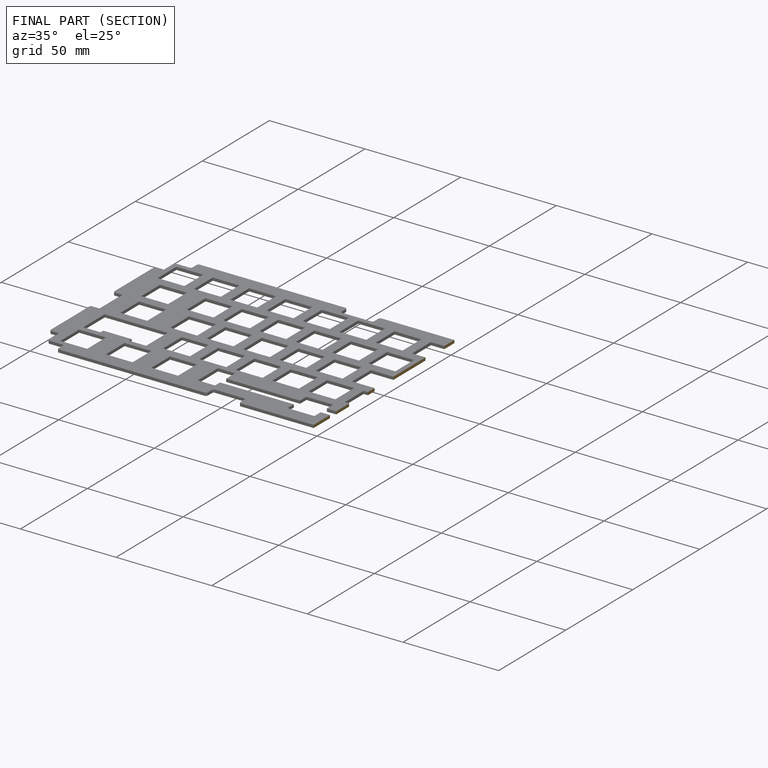
[diagram: finished part — half-section view (interior)]
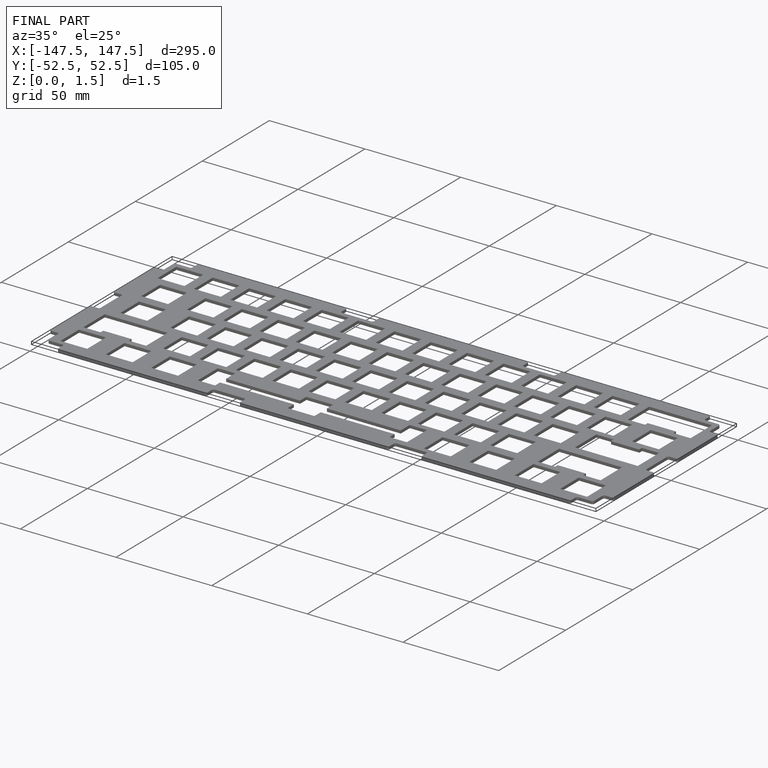
[diagram: finished part — iso view with bounding-box wireframe]
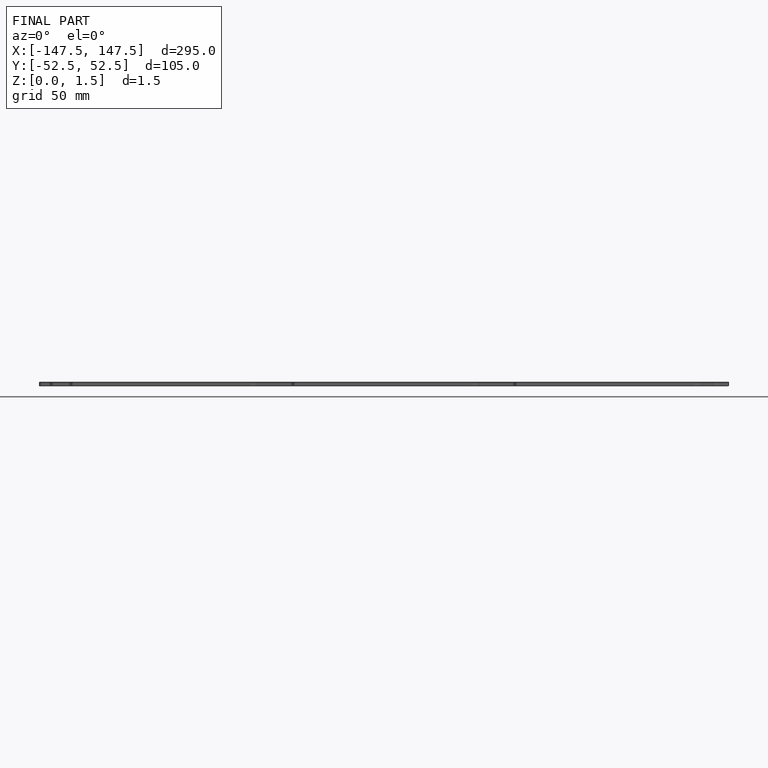
[diagram: finished part — front view with bounding-box wireframe]
